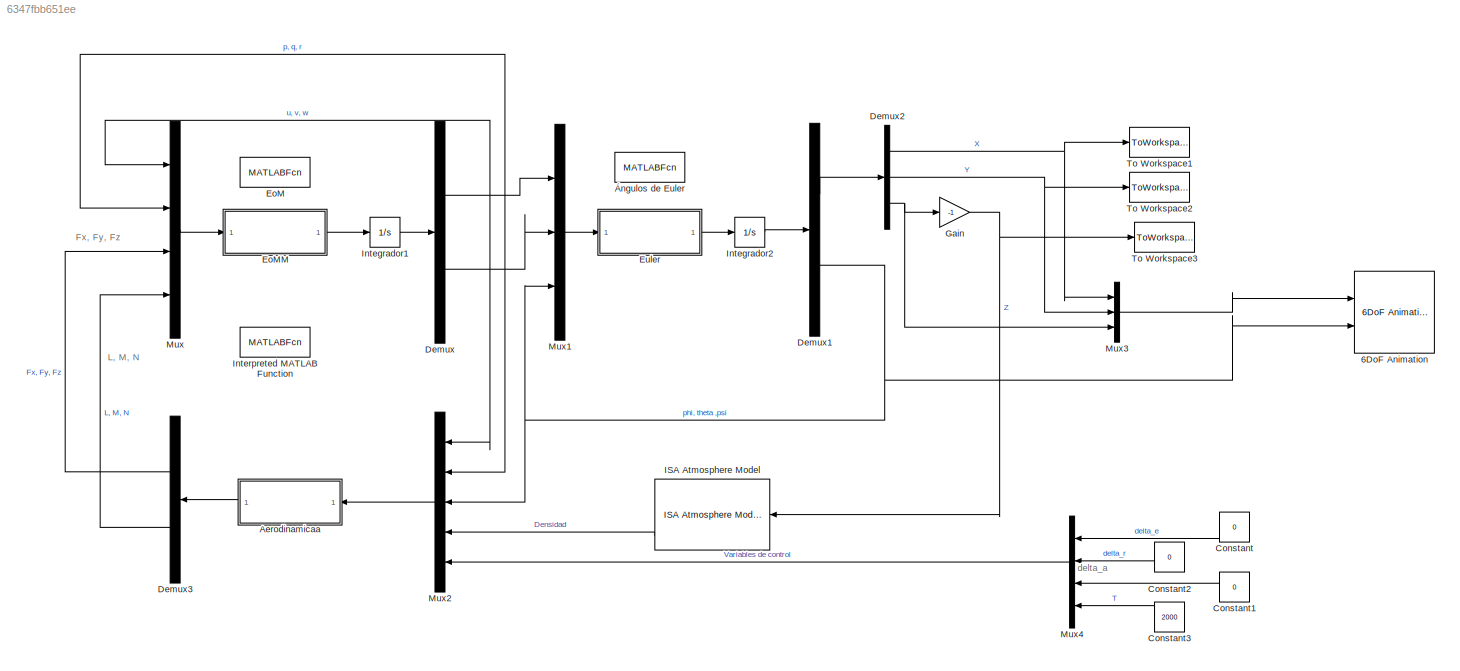
MODEL slx_6347fbb651ee
KIND model
CONFIG AbsTol = auto
CONFIG EnableMultiTasking = on
CONFIG FixedStep = auto
CONFIG MaxStep = auto
CONFIG MinStep = auto
CONFIG PreLoadFcn = codigos
CONFIG RelTol = 1e-3
CONFIG SampleTimeConstraint = Unconstrained
CONFIG SolverName = ode45
CONFIG StartTime = 0.0
CONFIG StopTime = 10
BLOCK [Reference] 6DoF Animation  REF=aerolibanim/6DoF Animation
  Ports = [2]
  SourceBlock = aerolibanim/6DoF Animation
  SourceProductBaseCode = AE
  SourceType = 6DoF_Animation
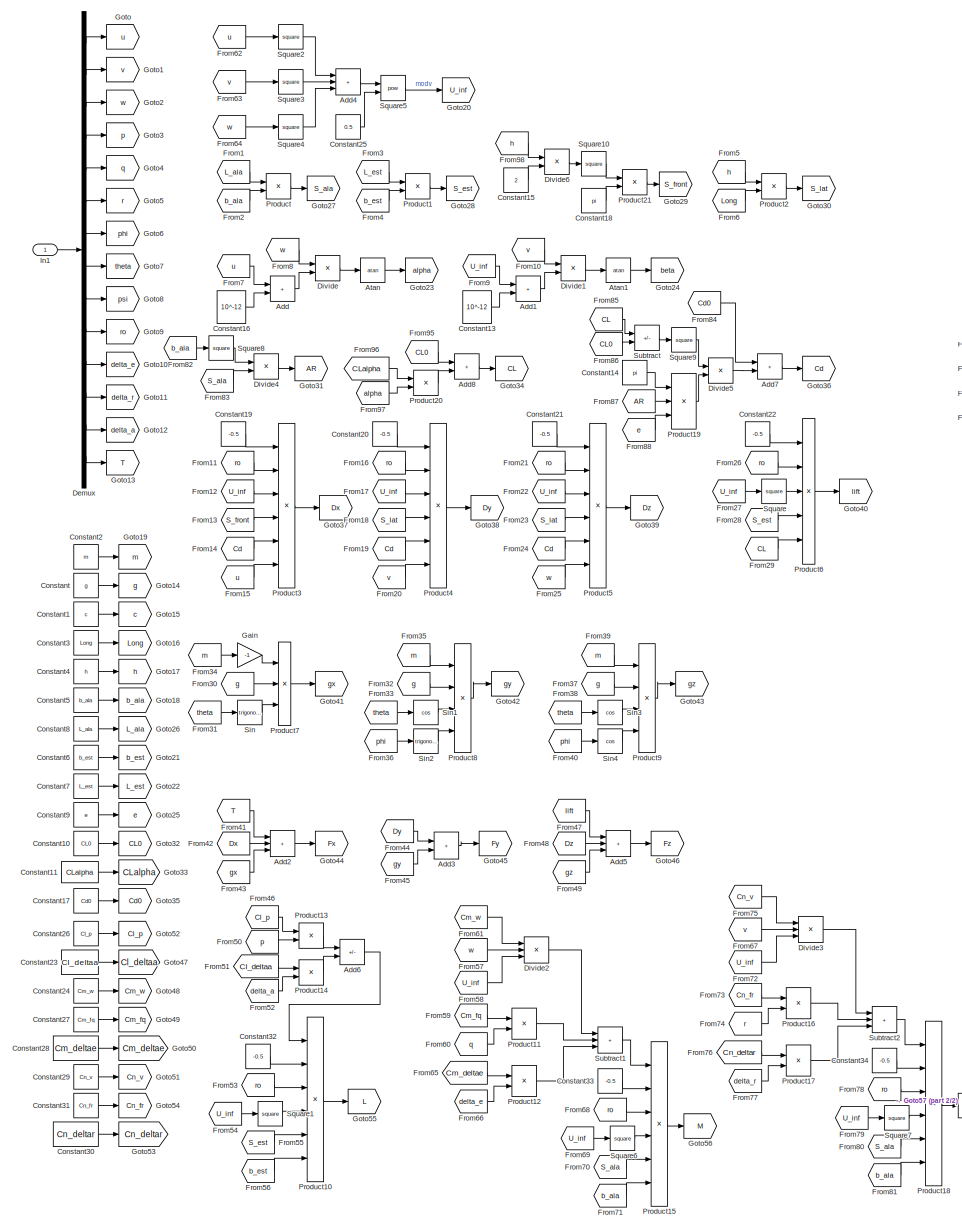
[diagram: Aerodinamicaa - part 1/2, most of the canvas]
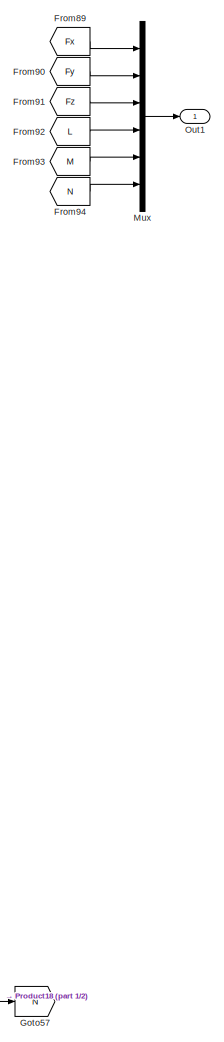
[diagram: Aerodinamicaa - part 2/2, middle right region]
BLOCK [SubSystem] Aerodinamicaa
  Ports = [1, 1]
  RequestExecContextInheritance = off
BLOCK [Sum] Aerodinamicaa/Add
  IconShape = rectangular
  Ports = [2, 1]
BLOCK [Sum] Aerodinamicaa/Add1
  IconShape = rectangular
  Ports = [2, 1]
BLOCK [Sum] Aerodinamicaa/Add2
  IconShape = rectangular
  Inputs = +++
  Ports = [3, 1]
BLOCK [Sum] Aerodinamicaa/Add3
  IconShape = rectangular
  Ports = [2, 1]
BLOCK [Sum] Aerodinamicaa/Add4
  IconShape = rectangular
  Inputs = +++
  Ports = [3, 1]
BLOCK [Sum] Aerodinamicaa/Add5
  IconShape = rectangular
  Inputs = +++
  Ports = [3, 1]
BLOCK [Sum] Aerodinamicaa/Add6
  IconShape = rectangular
  Inputs = +-
  Ports = [2, 1]
BLOCK [Sum] Aerodinamicaa/Add7
  IconShape = rectangular
  Ports = [2, 1]
BLOCK [Sum] Aerodinamicaa/Add8
  IconShape = rectangular
  Ports = [2, 1]
BLOCK [Trigonometry] Aerodinamicaa/Atan
  Operator = atan
  Ports = [1, 1]
BLOCK [Trigonometry] Aerodinamicaa/Atan1
  Operator = atan
  Ports = [1, 1]
BLOCK [Constant] Aerodinamicaa/Constant
  Value = g
BLOCK [Constant] Aerodinamicaa/Constant1
  Value = c
BLOCK [Constant] Aerodinamicaa/Constant10
  Value = CL0
BLOCK [Constant] Aerodinamicaa/Constant11
  Value = CLalpha
BLOCK [Constant] Aerodinamicaa/Constant13
  Value = 10^-12
BLOCK [Constant] Aerodinamicaa/Constant14
  Value = pi
BLOCK [Constant] Aerodinamicaa/Constant15
  Value = 2
BLOCK [Constant] Aerodinamicaa/Constant16
  Value = 10^-12
BLOCK [Constant] Aerodinamicaa/Constant17
  Value = Cd0
BLOCK [Constant] Aerodinamicaa/Constant18
  Value = pi
BLOCK [Constant] Aerodinamicaa/Constant19
  Value = -0.5
BLOCK [Constant] Aerodinamicaa/Constant2
  Value = m
BLOCK [Constant] Aerodinamicaa/Constant20
  Value = -0.5
BLOCK [Constant] Aerodinamicaa/Constant21
  Value = -0.5
BLOCK [Constant] Aerodinamicaa/Constant22
  Value = -0.5
BLOCK [Constant] Aerodinamicaa/Constant23
  Value = Cl_deltaa
BLOCK [Constant] Aerodinamicaa/Constant24
  Value = Cm_w
BLOCK [Constant] Aerodinamicaa/Constant25
  Value = 0.5
BLOCK [Constant] Aerodinamicaa/Constant26
  Value = Cl_p
BLOCK [Constant] Aerodinamicaa/Constant27
  Value = Cm_fq
BLOCK [Constant] Aerodinamicaa/Constant28
  Value = Cm_deltae
BLOCK [Constant] Aerodinamicaa/Constant29
  Value = Cn_v
BLOCK [Constant] Aerodinamicaa/Constant3
  Value = Long
BLOCK [Constant] Aerodinamicaa/Constant30
  Value = Cn_deltar
BLOCK [Constant] Aerodinamicaa/Constant31
  Value = Cn_fr
BLOCK [Constant] Aerodinamicaa/Constant32
  Value = -0.5
BLOCK [Constant] Aerodinamicaa/Constant33
  Value = -0.5
BLOCK [Constant] Aerodinamicaa/Constant34
  Value = -0.5
BLOCK [Constant] Aerodinamicaa/Constant4
  Value = h
BLOCK [Constant] Aerodinamicaa/Constant5
  Value = b_ala
BLOCK [Constant] Aerodinamicaa/Constant6
  Value = b_est
BLOCK [Constant] Aerodinamicaa/Constant7
  Value = L_est
BLOCK [Constant] Aerodinamicaa/Constant8
  Value = L_ala
BLOCK [Constant] Aerodinamicaa/Constant9
  Value = e
BLOCK [Demux] Aerodinamicaa/Demux
  Outputs = 14
  Ports = [1, 14]
BLOCK [Product] Aerodinamicaa/Divide
  Inputs = */
  Ports = [2, 1]
BLOCK [Product] Aerodinamicaa/Divide1
  Inputs = */
  Ports = [2, 1]
BLOCK [Product] Aerodinamicaa/Divide2
  Inputs = **/
  Ports = [3, 1]
BLOCK [Product] Aerodinamicaa/Divide3
  Inputs = **/
  Ports = [3, 1]
BLOCK [Product] Aerodinamicaa/Divide4
  Inputs = */
  Ports = [2, 1]
BLOCK [Product] Aerodinamicaa/Divide5
  Inputs = */
  Ports = [2, 1]
BLOCK [Product] Aerodinamicaa/Divide6
  Inputs = */
  Ports = [2, 1]
BLOCK [From] Aerodinamicaa/From1
  GotoTag = L_ala
BLOCK [From] Aerodinamicaa/From10
  GotoTag = v
BLOCK [From] Aerodinamicaa/From11
  GotoTag = ro
BLOCK [From] Aerodinamicaa/From12
  GotoTag = U_inf
BLOCK [From] Aerodinamicaa/From13
  GotoTag = S_front
BLOCK [From] Aerodinamicaa/From14
  GotoTag = Cd
BLOCK [From] Aerodinamicaa/From15
  GotoTag = u
BLOCK [From] Aerodinamicaa/From16
  GotoTag = ro
BLOCK [From] Aerodinamicaa/From17
  GotoTag = U_inf
BLOCK [From] Aerodinamicaa/From18
  GotoTag = S_lat
BLOCK [From] Aerodinamicaa/From19
  GotoTag = Cd
BLOCK [From] Aerodinamicaa/From2
  GotoTag = b_ala
BLOCK [From] Aerodinamicaa/From20
  GotoTag = v
BLOCK [From] Aerodinamicaa/From21
  GotoTag = ro
BLOCK [From] Aerodinamicaa/From22
  GotoTag = U_inf
BLOCK [From] Aerodinamicaa/From23
  GotoTag = S_lat
BLOCK [From] Aerodinamicaa/From24
  GotoTag = Cd
BLOCK [From] Aerodinamicaa/From25
  GotoTag = w
BLOCK [From] Aerodinamicaa/From26
  GotoTag = ro
BLOCK [From] Aerodinamicaa/From27
  GotoTag = U_inf
BLOCK [From] Aerodinamicaa/From28
  GotoTag = S_est
BLOCK [From] Aerodinamicaa/From29
  GotoTag = CL
BLOCK [From] Aerodinamicaa/From3
  GotoTag = L_est
BLOCK [From] Aerodinamicaa/From30
  GotoTag = g
BLOCK [From] Aerodinamicaa/From31
  GotoTag = theta
BLOCK [From] Aerodinamicaa/From32
  GotoTag = g
BLOCK [From] Aerodinamicaa/From33
  GotoTag = theta
BLOCK [From] Aerodinamicaa/From34
  GotoTag = m
BLOCK [From] Aerodinamicaa/From35
  GotoTag = m
BLOCK [From] Aerodinamicaa/From36
  GotoTag = phi
BLOCK [From] Aerodinamicaa/From37
  GotoTag = g
BLOCK [From] Aerodinamicaa/From38
  GotoTag = theta
BLOCK [From] Aerodinamicaa/From39
  GotoTag = m
BLOCK [From] Aerodinamicaa/From4
  GotoTag = b_est
BLOCK [From] Aerodinamicaa/From40
  GotoTag = phi
BLOCK [From] Aerodinamicaa/From41
  GotoTag = T
BLOCK [From] Aerodinamicaa/From42
  GotoTag = Dx
BLOCK [From] Aerodinamicaa/From43
  GotoTag = gx
BLOCK [From] Aerodinamicaa/From44
  GotoTag = Dy
BLOCK [From] Aerodinamicaa/From45
  GotoTag = gy
BLOCK [From] Aerodinamicaa/From46
  GotoTag = Cl_p
BLOCK [From] Aerodinamicaa/From47
  GotoTag = lift
BLOCK [From] Aerodinamicaa/From48
  GotoTag = Dz
BLOCK [From] Aerodinamicaa/From49
  GotoTag = gz
BLOCK [From] Aerodinamicaa/From5
  GotoTag = h
BLOCK [From] Aerodinamicaa/From50
  GotoTag = p
BLOCK [From] Aerodinamicaa/From51
  GotoTag = Cl_deltaa
BLOCK [From] Aerodinamicaa/From52
  GotoTag = delta_a
BLOCK [From] Aerodinamicaa/From53
  GotoTag = ro
BLOCK [From] Aerodinamicaa/From54
  GotoTag = U_inf
BLOCK [From] Aerodinamicaa/From55
  GotoTag = S_est
BLOCK [From] Aerodinamicaa/From56
  GotoTag = b_est
BLOCK [From] Aerodinamicaa/From57
  GotoTag = w
BLOCK [From] Aerodinamicaa/From58
  GotoTag = U_inf
BLOCK [From] Aerodinamicaa/From59
  GotoTag = Cm_fq
BLOCK [From] Aerodinamicaa/From6
  GotoTag = Long
BLOCK [From] Aerodinamicaa/From60
  GotoTag = q
BLOCK [From] Aerodinamicaa/From61
  GotoTag = Cm_w
BLOCK [From] Aerodinamicaa/From62
  GotoTag = u
BLOCK [From] Aerodinamicaa/From63
  GotoTag = v
BLOCK [From] Aerodinamicaa/From64
  GotoTag = w
BLOCK [From] Aerodinamicaa/From65
  GotoTag = Cm_deltae
BLOCK [From] Aerodinamicaa/From66
  GotoTag = delta_e
BLOCK [From] Aerodinamicaa/From67
  GotoTag = v
BLOCK [From] Aerodinamicaa/From68
  GotoTag = ro
BLOCK [From] Aerodinamicaa/From69
  GotoTag = U_inf
BLOCK [From] Aerodinamicaa/From7
  GotoTag = u
BLOCK [From] Aerodinamicaa/From70
  GotoTag = S_ala
BLOCK [From] Aerodinamicaa/From71
  GotoTag = b_ala
BLOCK [From] Aerodinamicaa/From72
  GotoTag = U_inf
BLOCK [From] Aerodinamicaa/From73
  GotoTag = Cn_fr
BLOCK [From] Aerodinamicaa/From74
  GotoTag = r
BLOCK [From] Aerodinamicaa/From75
  GotoTag = Cn_v
BLOCK [From] Aerodinamicaa/From76
  GotoTag = Cn_deltar
BLOCK [From] Aerodinamicaa/From77
  GotoTag = delta_r
BLOCK [From] Aerodinamicaa/From78
  GotoTag = ro
BLOCK [From] Aerodinamicaa/From79
  GotoTag = U_inf
BLOCK [From] Aerodinamicaa/From8
  GotoTag = w
BLOCK [From] Aerodinamicaa/From80
  GotoTag = S_ala
BLOCK [From] Aerodinamicaa/From81
  GotoTag = b_ala
BLOCK [From] Aerodinamicaa/From82
  GotoTag = b_ala
BLOCK [From] Aerodinamicaa/From83
  GotoTag = S_ala
BLOCK [From] Aerodinamicaa/From84
  GotoTag = Cd0
BLOCK [From] Aerodinamicaa/From85
  GotoTag = CL
BLOCK [From] Aerodinamicaa/From86
  GotoTag = CL0
BLOCK [From] Aerodinamicaa/From87
  GotoTag = AR
BLOCK [From] Aerodinamicaa/From88
  GotoTag = e
BLOCK [From] Aerodinamicaa/From89
  GotoTag = Fx
BLOCK [From] Aerodinamicaa/From9
  GotoTag = U_inf
BLOCK [From] Aerodinamicaa/From90
  GotoTag = Fy
BLOCK [From] Aerodinamicaa/From91
  GotoTag = Fz
BLOCK [From] Aerodinamicaa/From92
  GotoTag = L
BLOCK [From] Aerodinamicaa/From93
  GotoTag = M
BLOCK [From] Aerodinamicaa/From94
  GotoTag = N
BLOCK [From] Aerodinamicaa/From95
  GotoTag = CL0
BLOCK [From] Aerodinamicaa/From96
  GotoTag = CLalpha
BLOCK [From] Aerodinamicaa/From97
  GotoTag = alpha
BLOCK [From] Aerodinamicaa/From98
  GotoTag = h
BLOCK [Gain] Aerodinamicaa/Gain
  Gain = -1
BLOCK [Goto] Aerodinamicaa/Goto
  GotoTag = u
BLOCK [Goto] Aerodinamicaa/Goto1
  GotoTag = v
BLOCK [Goto] Aerodinamicaa/Goto10
  GotoTag = delta_e
BLOCK [Goto] Aerodinamicaa/Goto11
  GotoTag = delta_r
BLOCK [Goto] Aerodinamicaa/Goto12
  GotoTag = delta_a
BLOCK [Goto] Aerodinamicaa/Goto13
  GotoTag = T
BLOCK [Goto] Aerodinamicaa/Goto14
  GotoTag = g
BLOCK [Goto] Aerodinamicaa/Goto15
  GotoTag = c
BLOCK [Goto] Aerodinamicaa/Goto16
  GotoTag = Long
BLOCK [Goto] Aerodinamicaa/Goto17
  GotoTag = h
BLOCK [Goto] Aerodinamicaa/Goto18
  GotoTag = b_ala
BLOCK [Goto] Aerodinamicaa/Goto19
  GotoTag = m
BLOCK [Goto] Aerodinamicaa/Goto2
  GotoTag = w
BLOCK [Goto] Aerodinamicaa/Goto20
  GotoTag = U_inf
BLOCK [Goto] Aerodinamicaa/Goto21
  GotoTag = b_est
BLOCK [Goto] Aerodinamicaa/Goto22
  GotoTag = L_est
BLOCK [Goto] Aerodinamicaa/Goto23
  GotoTag = alpha
BLOCK [Goto] Aerodinamicaa/Goto24
  GotoTag = beta
BLOCK [Goto] Aerodinamicaa/Goto25
  GotoTag = e
BLOCK [Goto] Aerodinamicaa/Goto26
  GotoTag = L_ala
BLOCK [Goto] Aerodinamicaa/Goto27
  GotoTag = S_ala
BLOCK [Goto] Aerodinamicaa/Goto28
  GotoTag = S_est
BLOCK [Goto] Aerodinamicaa/Goto29
  GotoTag = S_front
BLOCK [Goto] Aerodinamicaa/Goto3
  GotoTag = p
BLOCK [Goto] Aerodinamicaa/Goto30
  GotoTag = S_lat
BLOCK [Goto] Aerodinamicaa/Goto31
  GotoTag = AR
BLOCK [Goto] Aerodinamicaa/Goto32
  GotoTag = CL0
BLOCK [Goto] Aerodinamicaa/Goto33
  GotoTag = CLalpha
BLOCK [Goto] Aerodinamicaa/Goto34
  GotoTag = CL
BLOCK [Goto] Aerodinamicaa/Goto35
  GotoTag = Cd0
BLOCK [Goto] Aerodinamicaa/Goto36
  GotoTag = Cd
BLOCK [Goto] Aerodinamicaa/Goto37
  GotoTag = Dx
BLOCK [Goto] Aerodinamicaa/Goto38
  GotoTag = Dy
BLOCK [Goto] Aerodinamicaa/Goto39
  GotoTag = Dz
BLOCK [Goto] Aerodinamicaa/Goto4
  GotoTag = q
BLOCK [Goto] Aerodinamicaa/Goto40
  GotoTag = lift
BLOCK [Goto] Aerodinamicaa/Goto41
  GotoTag = gx
BLOCK [Goto] Aerodinamicaa/Goto42
  GotoTag = gy
BLOCK [Goto] Aerodinamicaa/Goto43
  GotoTag = gz
BLOCK [Goto] Aerodinamicaa/Goto44
  GotoTag = Fx
BLOCK [Goto] Aerodinamicaa/Goto45
  GotoTag = Fy
BLOCK [Goto] Aerodinamicaa/Goto46
  GotoTag = Fz
BLOCK [Goto] Aerodinamicaa/Goto47
  GotoTag = Cl_deltaa
BLOCK [Goto] Aerodinamicaa/Goto48
  GotoTag = Cm_w
BLOCK [Goto] Aerodinamicaa/Goto49
  GotoTag = Cm_fq
BLOCK [Goto] Aerodinamicaa/Goto5
  GotoTag = r
BLOCK [Goto] Aerodinamicaa/Goto50
  GotoTag = Cm_deltae
BLOCK [Goto] Aerodinamicaa/Goto51
  GotoTag = Cn_v
BLOCK [Goto] Aerodinamicaa/Goto52
  GotoTag = Cl_p
BLOCK [Goto] Aerodinamicaa/Goto53
  GotoTag = Cn_deltar
BLOCK [Goto] Aerodinamicaa/Goto54
  GotoTag = Cn_fr
BLOCK [Goto] Aerodinamicaa/Goto55
  GotoTag = L
BLOCK [Goto] Aerodinamicaa/Goto56
  GotoTag = M
BLOCK [Goto] Aerodinamicaa/Goto57
  GotoTag = N
BLOCK [Goto] Aerodinamicaa/Goto6
  GotoTag = phi
BLOCK [Goto] Aerodinamicaa/Goto7
  GotoTag = theta
BLOCK [Goto] Aerodinamicaa/Goto8
  GotoTag = psi
BLOCK [Goto] Aerodinamicaa/Goto9
  GotoTag = ro
BLOCK [Inport] Aerodinamicaa/In1
BLOCK [Mux] Aerodinamicaa/Mux
  DisplayOption = bar
  Inputs = 6
  Ports = [6, 1]
BLOCK [Outport] Aerodinamicaa/Out1
BLOCK [Product] Aerodinamicaa/Product
  Ports = [2, 1]
BLOCK [Product] Aerodinamicaa/Product1
  Ports = [2, 1]
BLOCK [Product] Aerodinamicaa/Product10
  Inputs = 6
  Ports = [6, 1]
BLOCK [Product] Aerodinamicaa/Product11
  Ports = [2, 1]
BLOCK [Product] Aerodinamicaa/Product12
  Ports = [2, 1]
BLOCK [Product] Aerodinamicaa/Product13
  Ports = [2, 1]
BLOCK [Product] Aerodinamicaa/Product14
  Ports = [2, 1]
BLOCK [Product] Aerodinamicaa/Product15
  Inputs = 6
  Ports = [6, 1]
BLOCK [Product] Aerodinamicaa/Product16
  Ports = [2, 1]
BLOCK [Product] Aerodinamicaa/Product17
  Ports = [2, 1]
BLOCK [Product] Aerodinamicaa/Product18
  Inputs = 6
  Ports = [6, 1]
BLOCK [Product] Aerodinamicaa/Product19
  Inputs = 3
  Ports = [3, 1]
BLOCK [Product] Aerodinamicaa/Product2
  Ports = [2, 1]
BLOCK [Product] Aerodinamicaa/Product20
  Ports = [2, 1]
BLOCK [Product] Aerodinamicaa/Product21
  Ports = [2, 1]
BLOCK [Product] Aerodinamicaa/Product3
  Inputs = 6
  Ports = [6, 1]
BLOCK [Product] Aerodinamicaa/Product4
  Inputs = 6
  Ports = [6, 1]
BLOCK [Product] Aerodinamicaa/Product5
  Inputs = 6
  Ports = [6, 1]
BLOCK [Product] Aerodinamicaa/Product6
  Inputs = 5
  Ports = [5, 1]
BLOCK [Product] Aerodinamicaa/Product7
  Inputs = 3
  Ports = [3, 1]
BLOCK [Product] Aerodinamicaa/Product8
  Inputs = 4
  Ports = [4, 1]
BLOCK [Product] Aerodinamicaa/Product9
  Inputs = 4
  Ports = [4, 1]
BLOCK [Trigonometry] Aerodinamicaa/Sin
  Ports = [1, 1]
BLOCK [Trigonometry] Aerodinamicaa/Sin1
  Operator = cos
  Ports = [1, 1]
BLOCK [Trigonometry] Aerodinamicaa/Sin2
  Ports = [1, 1]
BLOCK [Trigonometry] Aerodinamicaa/Sin3
  Operator = cos
  Ports = [1, 1]
BLOCK [Trigonometry] Aerodinamicaa/Sin4
  Operator = cos
  Ports = [1, 1]
BLOCK [Math] Aerodinamicaa/Square
  Operator = square
  Ports = [1, 1]
BLOCK [Math] Aerodinamicaa/Square1
  Operator = square
  Ports = [1, 1]
BLOCK [Math] Aerodinamicaa/Square10
  Operator = square
  Ports = [1, 1]
BLOCK [Math] Aerodinamicaa/Square2
  Operator = square
  Ports = [1, 1]
BLOCK [Math] Aerodinamicaa/Square3
  Operator = square
  Ports = [1, 1]
BLOCK [Math] Aerodinamicaa/Square4
  Operator = square
  Ports = [1, 1]
BLOCK [Math] Aerodinamicaa/Square5
  Operator = pow
  Ports = [2, 1]
BLOCK [Math] Aerodinamicaa/Square6
  Operator = square
  Ports = [1, 1]
BLOCK [Math] Aerodinamicaa/Square7
  Operator = square
  Ports = [1, 1]
BLOCK [Math] Aerodinamicaa/Square8
  Operator = square
  Ports = [1, 1]
BLOCK [Math] Aerodinamicaa/Square9
  Operator = square
  Ports = [1, 1]
BLOCK [Sum] Aerodinamicaa/Subtract
  IconShape = rectangular
  Inputs = +-
  Ports = [2, 1]
BLOCK [Sum] Aerodinamicaa/Subtract1
  IconShape = rectangular
  Inputs = +++
  Ports = [3, 1]
BLOCK [Sum] Aerodinamicaa/Subtract2
  IconShape = rectangular
  Inputs = +++
  Ports = [3, 1]
BLOCK [Constant] Constant
  NameLocation = top
  Value = 0
BLOCK [Constant] Constant1
  NameLocation = top
  Value = 0
BLOCK [Constant] Constant2
  NameLocation = top
  Value = 0
BLOCK [Constant] Constant3
  NameLocation = top
  Value = 2000
BLOCK [Demux] Demux
  Outputs = 2
  Ports = [1, 2]
BLOCK [Demux] Demux1
  Outputs = 2
  Ports = [1, 2]
BLOCK [Demux] Demux2
  Outputs = 3
  Ports = [1, 3]
BLOCK [Demux] Demux3
  NameLocation = top
  Outputs = 2
  Ports = [1, 2]
BLOCK [MATLABFcn] EoM
  Commented = on
  MATLABFcn = eom
  OutputDimensions = 6
  Ports = [1, 1]
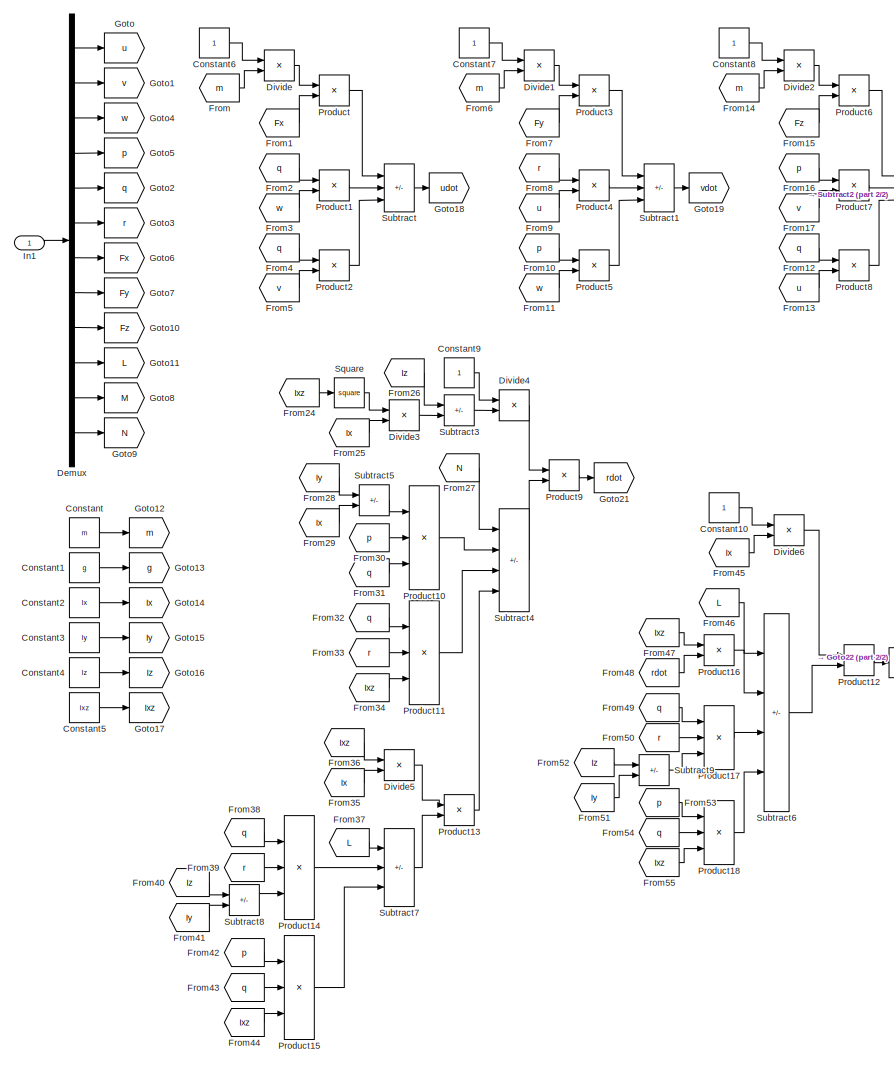
[diagram: EoMM - part 1/2, left side, full height]
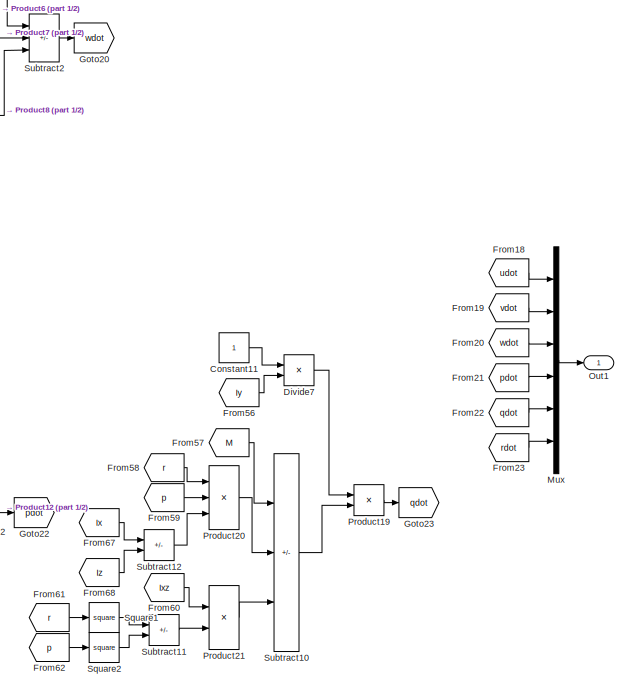
[diagram: EoMM - part 2/2, middle right region]
BLOCK [SubSystem] EoMM
  Ports = [1, 1]
  RequestExecContextInheritance = off
BLOCK [Constant] EoMM/Constant
  Value = m
BLOCK [Constant] EoMM/Constant1
  Value = g
BLOCK [Constant] EoMM/Constant10
BLOCK [Constant] EoMM/Constant11
BLOCK [Constant] EoMM/Constant2
  Value = Ix
BLOCK [Constant] EoMM/Constant3
  Value = Iy
BLOCK [Constant] EoMM/Constant4
  Value = Iz
BLOCK [Constant] EoMM/Constant5
  Value = Ixz
BLOCK [Constant] EoMM/Constant6
BLOCK [Constant] EoMM/Constant7
BLOCK [Constant] EoMM/Constant8
BLOCK [Constant] EoMM/Constant9
BLOCK [Demux] EoMM/Demux
  Outputs = 12
  Ports = [1, 12]
BLOCK [Product] EoMM/Divide
  Inputs = */
  Ports = [2, 1]
BLOCK [Product] EoMM/Divide1
  Inputs = */
  Ports = [2, 1]
BLOCK [Product] EoMM/Divide2
  Inputs = */
  Ports = [2, 1]
BLOCK [Product] EoMM/Divide3
  Inputs = */
  Ports = [2, 1]
BLOCK [Product] EoMM/Divide4
  Inputs = */
  Ports = [2, 1]
BLOCK [Product] EoMM/Divide5
  Inputs = */
  Ports = [2, 1]
BLOCK [Product] EoMM/Divide6
  Inputs = */
  Ports = [2, 1]
BLOCK [Product] EoMM/Divide7
  Inputs = */
  Ports = [2, 1]
BLOCK [From] EoMM/From
  GotoTag = m
BLOCK [From] EoMM/From1
  GotoTag = Fx
BLOCK [From] EoMM/From10
  GotoTag = p
BLOCK [From] EoMM/From11
  GotoTag = w
BLOCK [From] EoMM/From12
  GotoTag = q
BLOCK [From] EoMM/From13
  GotoTag = u
BLOCK [From] EoMM/From14
  GotoTag = m
BLOCK [From] EoMM/From15
  GotoTag = Fz
BLOCK [From] EoMM/From16
  GotoTag = p
BLOCK [From] EoMM/From17
  GotoTag = v
BLOCK [From] EoMM/From18
  GotoTag = udot
BLOCK [From] EoMM/From19
  GotoTag = vdot
BLOCK [From] EoMM/From2
  GotoTag = q
BLOCK [From] EoMM/From20
  GotoTag = wdot
BLOCK [From] EoMM/From21
  GotoTag = pdot
BLOCK [From] EoMM/From22
  GotoTag = qdot
BLOCK [From] EoMM/From23
  GotoTag = rdot
BLOCK [From] EoMM/From24
  GotoTag = Ixz
BLOCK [From] EoMM/From25
  GotoTag = Ix
BLOCK [From] EoMM/From26
  GotoTag = Iz
BLOCK [From] EoMM/From27
  GotoTag = N
BLOCK [From] EoMM/From28
  GotoTag = Iy
BLOCK [From] EoMM/From29
  GotoTag = Ix
BLOCK [From] EoMM/From3
  GotoTag = w
BLOCK [From] EoMM/From30
  GotoTag = p
BLOCK [From] EoMM/From31
  GotoTag = q
BLOCK [From] EoMM/From32
  GotoTag = q
BLOCK [From] EoMM/From33
  GotoTag = r
BLOCK [From] EoMM/From34
  GotoTag = Ixz
BLOCK [From] EoMM/From35
  GotoTag = Ix
BLOCK [From] EoMM/From36
  GotoTag = Ixz
BLOCK [From] EoMM/From37
  GotoTag = L
BLOCK [From] EoMM/From38
  GotoTag = q
BLOCK [From] EoMM/From39
  GotoTag = r
BLOCK [From] EoMM/From4
  GotoTag = q
BLOCK [From] EoMM/From40
  GotoTag = Iz
BLOCK [From] EoMM/From41
  GotoTag = Iy
BLOCK [From] EoMM/From42
  GotoTag = p
BLOCK [From] EoMM/From43
  GotoTag = q
BLOCK [From] EoMM/From44
  GotoTag = Ixz
BLOCK [From] EoMM/From45
  GotoTag = Ix
BLOCK [From] EoMM/From46
  GotoTag = L
BLOCK [From] EoMM/From47
  GotoTag = Ixz
BLOCK [From] EoMM/From48
  GotoTag = rdot
BLOCK [From] EoMM/From49
  GotoTag = q
BLOCK [From] EoMM/From5
  GotoTag = v
BLOCK [From] EoMM/From50
  GotoTag = r
BLOCK [From] EoMM/From51
  GotoTag = Iy
BLOCK [From] EoMM/From52
  GotoTag = Iz
BLOCK [From] EoMM/From53
  GotoTag = p
BLOCK [From] EoMM/From54
  GotoTag = q
BLOCK [From] EoMM/From55
  GotoTag = Ixz
BLOCK [From] EoMM/From56
  GotoTag = Iy
BLOCK [From] EoMM/From57
  GotoTag = M
BLOCK [From] EoMM/From58
  GotoTag = r
BLOCK [From] EoMM/From59
  GotoTag = p
BLOCK [From] EoMM/From6
  GotoTag = m
BLOCK [From] EoMM/From60
  GotoTag = Ixz
BLOCK [From] EoMM/From61
  GotoTag = r
BLOCK [From] EoMM/From62
  GotoTag = p
BLOCK [From] EoMM/From67
  GotoTag = Ix
BLOCK [From] EoMM/From68
  GotoTag = Iz
BLOCK [From] EoMM/From7
  GotoTag = Fy
BLOCK [From] EoMM/From8
  GotoTag = r
BLOCK [From] EoMM/From9
  GotoTag = u
BLOCK [Goto] EoMM/Goto
  GotoTag = u
BLOCK [Goto] EoMM/Goto1
  GotoTag = v
BLOCK [Goto] EoMM/Goto10
  GotoTag = Fz
BLOCK [Goto] EoMM/Goto11
  GotoTag = L
BLOCK [Goto] EoMM/Goto12
  GotoTag = m
BLOCK [Goto] EoMM/Goto13
  GotoTag = g
BLOCK [Goto] EoMM/Goto14
  GotoTag = Ix
BLOCK [Goto] EoMM/Goto15
  GotoTag = Iy
BLOCK [Goto] EoMM/Goto16
  GotoTag = Iz
BLOCK [Goto] EoMM/Goto17
  GotoTag = Ixz
BLOCK [Goto] EoMM/Goto18
  GotoTag = udot
BLOCK [Goto] EoMM/Goto19
  GotoTag = vdot
BLOCK [Goto] EoMM/Goto2
  GotoTag = q
BLOCK [Goto] EoMM/Goto20
  GotoTag = wdot
BLOCK [Goto] EoMM/Goto21
  GotoTag = rdot
BLOCK [Goto] EoMM/Goto22
  GotoTag = pdot
BLOCK [Goto] EoMM/Goto23
  GotoTag = qdot
BLOCK [Goto] EoMM/Goto3
  GotoTag = r
BLOCK [Goto] EoMM/Goto4
  GotoTag = w
BLOCK [Goto] EoMM/Goto5
  GotoTag = p
BLOCK [Goto] EoMM/Goto6
  GotoTag = Fx
BLOCK [Goto] EoMM/Goto7
  GotoTag = Fy
BLOCK [Goto] EoMM/Goto8
  GotoTag = M
BLOCK [Goto] EoMM/Goto9
  GotoTag = N
BLOCK [Inport] EoMM/In1
BLOCK [Mux] EoMM/Mux
  DisplayOption = bar
  Inputs = 6
  Ports = [6, 1]
BLOCK [Outport] EoMM/Out1
BLOCK [Product] EoMM/Product
  Ports = [2, 1]
BLOCK [Product] EoMM/Product1
  Ports = [2, 1]
BLOCK [Product] EoMM/Product10
  Inputs = 3
  Ports = [3, 1]
BLOCK [Product] EoMM/Product11
  Inputs = 3
  Ports = [3, 1]
BLOCK [Product] EoMM/Product12
  Ports = [2, 1]
BLOCK [Product] EoMM/Product13
  Ports = [2, 1]
BLOCK [Product] EoMM/Product14
  Inputs = 3
  Ports = [3, 1]
BLOCK [Product] EoMM/Product15
  Inputs = 3
  Ports = [3, 1]
BLOCK [Product] EoMM/Product16
  Ports = [2, 1]
BLOCK [Product] EoMM/Product17
  Inputs = 3
  Ports = [3, 1]
BLOCK [Product] EoMM/Product18
  Inputs = 3
  Ports = [3, 1]
BLOCK [Product] EoMM/Product19
  Ports = [2, 1]
BLOCK [Product] EoMM/Product2
  Ports = [2, 1]
BLOCK [Product] EoMM/Product20
  Inputs = 3
  Ports = [3, 1]
BLOCK [Product] EoMM/Product21
  Ports = [2, 1]
BLOCK [Product] EoMM/Product3
  Ports = [2, 1]
BLOCK [Product] EoMM/Product4
  Ports = [2, 1]
BLOCK [Product] EoMM/Product5
  Ports = [2, 1]
BLOCK [Product] EoMM/Product6
  Ports = [2, 1]
BLOCK [Product] EoMM/Product7
  Ports = [2, 1]
BLOCK [Product] EoMM/Product8
  Ports = [2, 1]
BLOCK [Product] EoMM/Product9
  Ports = [2, 1]
BLOCK [Math] EoMM/Square
  Operator = square
  Ports = [1, 1]
BLOCK [Math] EoMM/Square1
  Operator = square
  Ports = [1, 1]
BLOCK [Math] EoMM/Square2
  Operator = square
  Ports = [1, 1]
BLOCK [Sum] EoMM/Subtract
  IconShape = rectangular
  Inputs = +-+
  Ports = [3, 1]
BLOCK [Sum] EoMM/Subtract1
  IconShape = rectangular
  Inputs = +-+
  Ports = [3, 1]
BLOCK [Sum] EoMM/Subtract10
  IconShape = rectangular
  Inputs = +--
  Ports = [3, 1]
BLOCK [Sum] EoMM/Subtract11
  IconShape = rectangular
  Inputs = +-
  Ports = [2, 1]
BLOCK [Sum] EoMM/Subtract12
  IconShape = rectangular
  Inputs = +-
  Ports = [2, 1]
BLOCK [Sum] EoMM/Subtract2
  IconShape = rectangular
  Inputs = +-+
  Ports = [3, 1]
BLOCK [Sum] EoMM/Subtract3
  IconShape = rectangular
  Inputs = +-
  Ports = [2, 1]
BLOCK [Sum] EoMM/Subtract4
  IconShape = rectangular
  Inputs = +-+-
  Ports = [4, 1]
BLOCK [Sum] EoMM/Subtract5
  IconShape = rectangular
  Inputs = +-
  Ports = [2, 1]
BLOCK [Sum] EoMM/Subtract6
  IconShape = rectangular
  Inputs = +---
  Ports = [4, 1]
BLOCK [Sum] EoMM/Subtract7
  IconShape = rectangular
  Inputs = +--
  Ports = [3, 1]
BLOCK [Sum] EoMM/Subtract8
  IconShape = rectangular
  Inputs = +-
  Ports = [2, 1]
BLOCK [Sum] EoMM/Subtract9
  IconShape = rectangular
  Inputs = +-
  Ports = [2, 1]
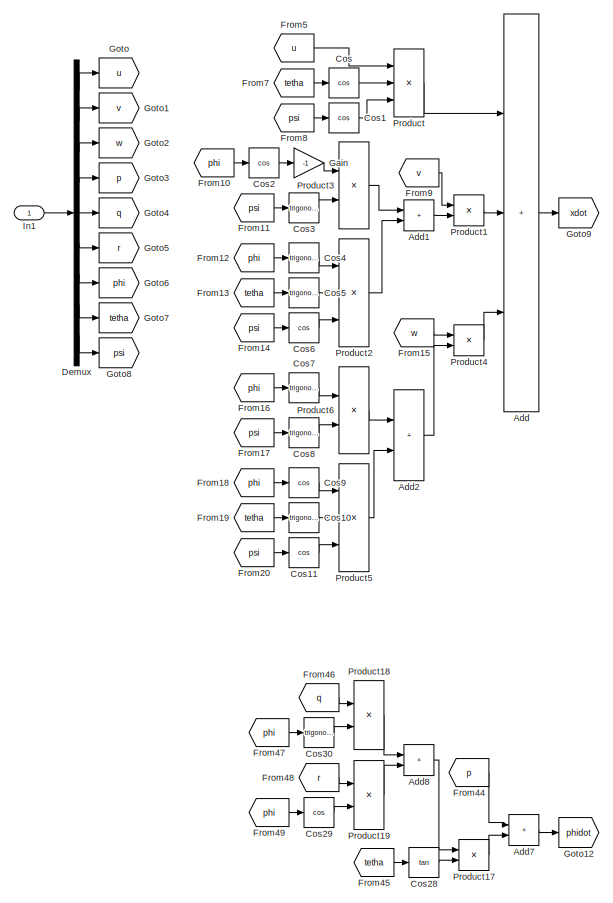
[diagram: Euler - part 1/2, left side, full height]
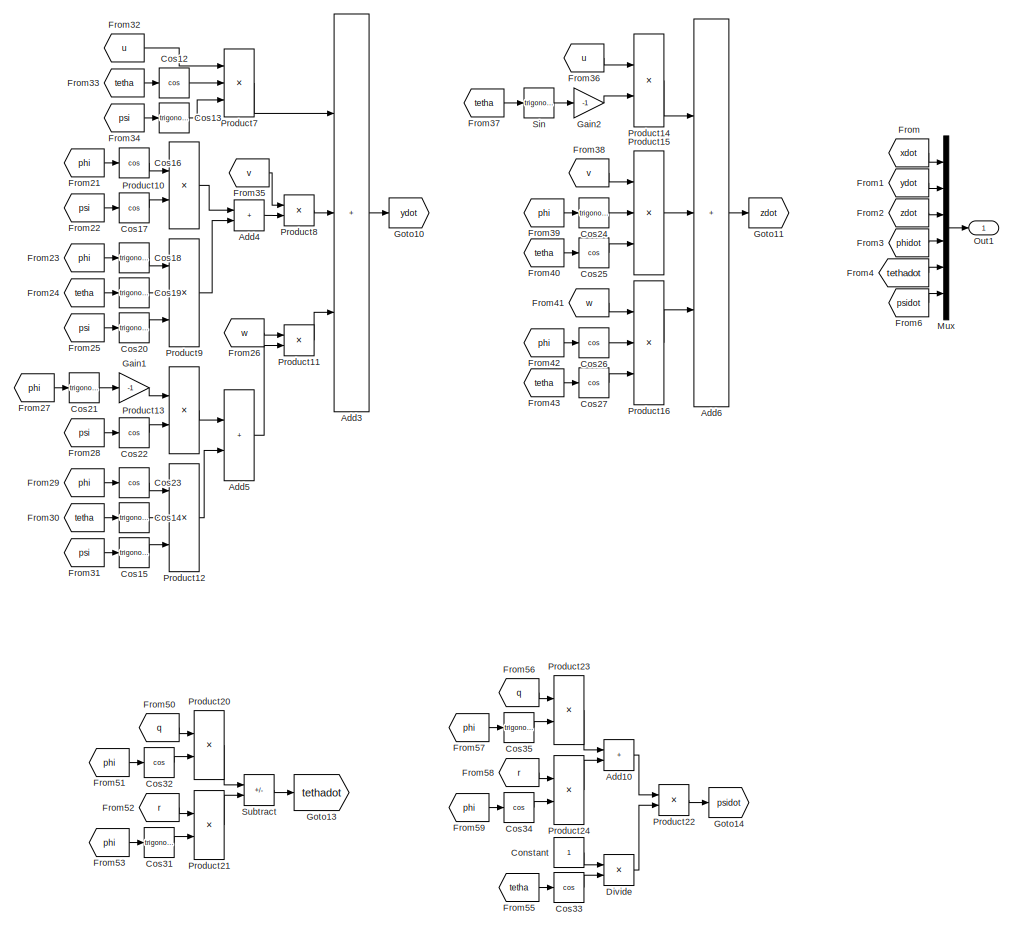
[diagram: Euler - part 2/2, right side, full height]
BLOCK [SubSystem] Euler
  Ports = [1, 1]
  RequestExecContextInheritance = off
BLOCK [Sum] Euler/Add
  IconShape = rectangular
  Inputs = +++
  Ports = [3, 1]
BLOCK [Sum] Euler/Add1
  IconShape = rectangular
  Ports = [2, 1]
BLOCK [Sum] Euler/Add10
  IconShape = rectangular
  Ports = [2, 1]
BLOCK [Sum] Euler/Add2
  IconShape = rectangular
  Ports = [2, 1]
BLOCK [Sum] Euler/Add3
  IconShape = rectangular
  Inputs = +++
  Ports = [3, 1]
BLOCK [Sum] Euler/Add4
  IconShape = rectangular
  Ports = [2, 1]
BLOCK [Sum] Euler/Add5
  IconShape = rectangular
  Ports = [2, 1]
BLOCK [Sum] Euler/Add6
  IconShape = rectangular
  Inputs = +++
  Ports = [3, 1]
BLOCK [Sum] Euler/Add7
  IconShape = rectangular
  Ports = [2, 1]
BLOCK [Sum] Euler/Add8
  IconShape = rectangular
  Ports = [2, 1]
BLOCK [Constant] Euler/Constant
BLOCK [Trigonometry] Euler/Cos
  Operator = cos
  Ports = [1, 1]
BLOCK [Trigonometry] Euler/Cos1
  Operator = cos
  Ports = [1, 1]
BLOCK [Trigonometry] Euler/Cos10
  Ports = [1, 1]
BLOCK [Trigonometry] Euler/Cos11
  Operator = cos
  Ports = [1, 1]
BLOCK [Trigonometry] Euler/Cos12
  Operator = cos
  Ports = [1, 1]
BLOCK [Trigonometry] Euler/Cos13
  Ports = [1, 1]
BLOCK [Trigonometry] Euler/Cos14
  Ports = [1, 1]
BLOCK [Trigonometry] Euler/Cos15
  Ports = [1, 1]
BLOCK [Trigonometry] Euler/Cos16
  Operator = cos
  Ports = [1, 1]
BLOCK [Trigonometry] Euler/Cos17
  Operator = cos
  Ports = [1, 1]
BLOCK [Trigonometry] Euler/Cos18
  Ports = [1, 1]
BLOCK [Trigonometry] Euler/Cos19
  Ports = [1, 1]
BLOCK [Trigonometry] Euler/Cos2
  Operator = cos
  Ports = [1, 1]
BLOCK [Trigonometry] Euler/Cos20
  Ports = [1, 1]
BLOCK [Trigonometry] Euler/Cos21
  Ports = [1, 1]
BLOCK [Trigonometry] Euler/Cos22
  Operator = cos
  Ports = [1, 1]
BLOCK [Trigonometry] Euler/Cos23
  Operator = cos
  Ports = [1, 1]
BLOCK [Trigonometry] Euler/Cos24
  Ports = [1, 1]
BLOCK [Trigonometry] Euler/Cos25
  Operator = cos
  Ports = [1, 1]
BLOCK [Trigonometry] Euler/Cos26
  Operator = cos
  Ports = [1, 1]
BLOCK [Trigonometry] Euler/Cos27
  Operator = cos
  Ports = [1, 1]
BLOCK [Trigonometry] Euler/Cos28
  Operator = tan
  Ports = [1, 1]
BLOCK [Trigonometry] Euler/Cos29
  Operator = cos
  Ports = [1, 1]
BLOCK [Trigonometry] Euler/Cos3
  Ports = [1, 1]
BLOCK [Trigonometry] Euler/Cos30
  Ports = [1, 1]
BLOCK [Trigonometry] Euler/Cos31
  Ports = [1, 1]
BLOCK [Trigonometry] Euler/Cos32
  Operator = cos
  Ports = [1, 1]
BLOCK [Trigonometry] Euler/Cos33
  Operator = cos
  Ports = [1, 1]
BLOCK [Trigonometry] Euler/Cos34
  Operator = cos
  Ports = [1, 1]
BLOCK [Trigonometry] Euler/Cos35
  Ports = [1, 1]
BLOCK [Trigonometry] Euler/Cos4
  Ports = [1, 1]
BLOCK [Trigonometry] Euler/Cos5
  Ports = [1, 1]
BLOCK [Trigonometry] Euler/Cos6
  Operator = cos
  Ports = [1, 1]
BLOCK [Trigonometry] Euler/Cos7
  Ports = [1, 1]
BLOCK [Trigonometry] Euler/Cos8
  Ports = [1, 1]
BLOCK [Trigonometry] Euler/Cos9
  Operator = cos
  Ports = [1, 1]
BLOCK [Demux] Euler/Demux
  Outputs = 9
  Ports = [1, 9]
BLOCK [Product] Euler/Divide
  Inputs = */
  Ports = [2, 1]
BLOCK [From] Euler/From
  GotoTag = xdot
BLOCK [From] Euler/From1
  GotoTag = ydot
BLOCK [From] Euler/From10
  GotoTag = phi
BLOCK [From] Euler/From11
  GotoTag = psi
BLOCK [From] Euler/From12
  GotoTag = phi
BLOCK [From] Euler/From13
  GotoTag = tetha
BLOCK [From] Euler/From14
  GotoTag = psi
BLOCK [From] Euler/From15
  GotoTag = w
BLOCK [From] Euler/From16
  GotoTag = phi
BLOCK [From] Euler/From17
  GotoTag = psi
BLOCK [From] Euler/From18
  GotoTag = phi
BLOCK [From] Euler/From19
  GotoTag = tetha
BLOCK [From] Euler/From2
  GotoTag = zdot
BLOCK [From] Euler/From20
  GotoTag = psi
BLOCK [From] Euler/From21
  GotoTag = phi
BLOCK [From] Euler/From22
  GotoTag = psi
BLOCK [From] Euler/From23
  GotoTag = phi
BLOCK [From] Euler/From24
  GotoTag = tetha
BLOCK [From] Euler/From25
  GotoTag = psi
BLOCK [From] Euler/From26
  GotoTag = w
BLOCK [From] Euler/From27
  GotoTag = phi
BLOCK [From] Euler/From28
  GotoTag = psi
BLOCK [From] Euler/From29
  GotoTag = phi
BLOCK [From] Euler/From3
  GotoTag = phidot
BLOCK [From] Euler/From30
  GotoTag = tetha
BLOCK [From] Euler/From31
  GotoTag = psi
BLOCK [From] Euler/From32
  GotoTag = u
BLOCK [From] Euler/From33
  GotoTag = tetha
BLOCK [From] Euler/From34
  GotoTag = psi
BLOCK [From] Euler/From35
  GotoTag = v
BLOCK [From] Euler/From36
  GotoTag = u
BLOCK [From] Euler/From37
  GotoTag = tetha
BLOCK [From] Euler/From38
  GotoTag = v
BLOCK [From] Euler/From39
  GotoTag = phi
BLOCK [From] Euler/From4
  GotoTag = tethadot
BLOCK [From] Euler/From40
  GotoTag = tetha
BLOCK [From] Euler/From41
  GotoTag = w
BLOCK [From] Euler/From42
  GotoTag = phi
BLOCK [From] Euler/From43
  GotoTag = tetha
BLOCK [From] Euler/From44
  GotoTag = p
BLOCK [From] Euler/From45
  GotoTag = tetha
BLOCK [From] Euler/From46
  GotoTag = q
BLOCK [From] Euler/From47
  GotoTag = phi
BLOCK [From] Euler/From48
  GotoTag = r
BLOCK [From] Euler/From49
  GotoTag = phi
BLOCK [From] Euler/From5
  GotoTag = u
BLOCK [From] Euler/From50
  GotoTag = q
BLOCK [From] Euler/From51
  GotoTag = phi
BLOCK [From] Euler/From52
  GotoTag = r
BLOCK [From] Euler/From53
  GotoTag = phi
BLOCK [From] Euler/From55
  GotoTag = tetha
BLOCK [From] Euler/From56
  GotoTag = q
BLOCK [From] Euler/From57
  GotoTag = phi
BLOCK [From] Euler/From58
  GotoTag = r
BLOCK [From] Euler/From59
  GotoTag = phi
BLOCK [From] Euler/From6
  GotoTag = psidot
BLOCK [From] Euler/From7
  GotoTag = tetha
BLOCK [From] Euler/From8
  GotoTag = psi
BLOCK [From] Euler/From9
  GotoTag = v
BLOCK [Gain] Euler/Gain
  Gain = -1
BLOCK [Gain] Euler/Gain1
  Gain = -1
BLOCK [Gain] Euler/Gain2
  Gain = -1
BLOCK [Goto] Euler/Goto
  GotoTag = u
BLOCK [Goto] Euler/Goto1
  GotoTag = v
BLOCK [Goto] Euler/Goto10
  GotoTag = ydot
BLOCK [Goto] Euler/Goto11
  GotoTag = zdot
BLOCK [Goto] Euler/Goto12
  GotoTag = phidot
BLOCK [Goto] Euler/Goto13
  GotoTag = tethadot
BLOCK [Goto] Euler/Goto14
  GotoTag = psidot
BLOCK [Goto] Euler/Goto2
  GotoTag = w
BLOCK [Goto] Euler/Goto3
  GotoTag = p
BLOCK [Goto] Euler/Goto4
  GotoTag = q
BLOCK [Goto] Euler/Goto5
  GotoTag = r
BLOCK [Goto] Euler/Goto6
  GotoTag = phi
BLOCK [Goto] Euler/Goto7
  GotoTag = tetha
BLOCK [Goto] Euler/Goto8
  GotoTag = psi
BLOCK [Goto] Euler/Goto9
  GotoTag = xdot
BLOCK [Inport] Euler/In1
BLOCK [Mux] Euler/Mux
  DisplayOption = bar
  Inputs = 6
  Ports = [6, 1]
BLOCK [Outport] Euler/Out1
BLOCK [Product] Euler/Product
  Inputs = 3
  Ports = [3, 1]
BLOCK [Product] Euler/Product1
  Ports = [2, 1]
BLOCK [Product] Euler/Product10
  Ports = [2, 1]
BLOCK [Product] Euler/Product11
  Ports = [2, 1]
BLOCK [Product] Euler/Product12
  Inputs = 3
  Ports = [3, 1]
BLOCK [Product] Euler/Product13
  Ports = [2, 1]
BLOCK [Product] Euler/Product14
  Ports = [2, 1]
BLOCK [Product] Euler/Product15
  Inputs = 3
  Ports = [3, 1]
BLOCK [Product] Euler/Product16
  Inputs = 3
  Ports = [3, 1]
BLOCK [Product] Euler/Product17
  Ports = [2, 1]
BLOCK [Product] Euler/Product18
  Ports = [2, 1]
BLOCK [Product] Euler/Product19
  Ports = [2, 1]
BLOCK [Product] Euler/Product2
  Inputs = 3
  Ports = [3, 1]
BLOCK [Product] Euler/Product20
  Ports = [2, 1]
BLOCK [Product] Euler/Product21
  Ports = [2, 1]
BLOCK [Product] Euler/Product22
  Ports = [2, 1]
BLOCK [Product] Euler/Product23
  Ports = [2, 1]
BLOCK [Product] Euler/Product24
  Ports = [2, 1]
BLOCK [Product] Euler/Product3
  Ports = [2, 1]
BLOCK [Product] Euler/Product4
  Ports = [2, 1]
BLOCK [Product] Euler/Product5
  Inputs = 3
  Ports = [3, 1]
BLOCK [Product] Euler/Product6
  Ports = [2, 1]
BLOCK [Product] Euler/Product7
  Inputs = 3
  Ports = [3, 1]
BLOCK [Product] Euler/Product8
  Ports = [2, 1]
BLOCK [Product] Euler/Product9
  Inputs = 3
  Ports = [3, 1]
BLOCK [Trigonometry] Euler/Sin
  Ports = [1, 1]
BLOCK [Sum] Euler/Subtract
  IconShape = rectangular
  Inputs = +-
  Ports = [2, 1]
BLOCK [Gain] Gain
  Gain = -1
BLOCK [Reference] ISA Atmosphere Model  REF=aerolibatmos2/ISA Atmosphere Model
  NameLocation = top
  Ports = [1, 4]
  SourceBlock = aerolibatmos2/ISA Atmosphere Model
  SourceProductBaseCode = AE
  SourceType = International Standard Atmosphere Model
BLOCK [Integrator] Integrador1
  InitialCondition = [0.001,0,0,0,0,0]
  Ports = [1, 1]
BLOCK [Integrator] Integrador2
  DeleteFcn = slcm Cancel;
  InitialCondition = [0,0,2000,0,pi/4,0]
  NameChangeFcn = slcm Rename;
  Ports = [1, 1]
BLOCK [MATLABFcn] Interpreted MATLAB Function
  Commented = on
  MATLABFcn = aerodinamica
  NameLocation = top
  OutputDimensions = 6
  Ports = [1, 1]
BLOCK [Mux] Mux
  DisplayOption = bar
  Ports = [4, 1]
BLOCK [Mux] Mux1
  DisplayOption = bar
  Inputs = 3
  Ports = [3, 1]
BLOCK [Mux] Mux2
  DisplayOption = bar
  Inputs = 5
  Ports = [5, 1]
BLOCK [Mux] Mux3
  DisplayOption = bar
  Inputs = 3
  Ports = [3, 1]
BLOCK [Mux] Mux4
  DisplayOption = bar
  NameLocation = top
  Ports = [4, 1]
BLOCK [ToWorkspace] To Workspace1
  MaxDataPoints = inf
  Ports = [1]
  SampleTime = -1
  VariableName = x
BLOCK [ToWorkspace] To Workspace2
  MaxDataPoints = inf
  Ports = [1]
  SampleTime = -1
  VariableName = y
BLOCK [ToWorkspace] To Workspace3
  MaxDataPoints = inf
  Ports = [1]
  SampleTime = -1
  VariableName = z
BLOCK [MATLABFcn] Ángulos de Euler
  Commented = on
  MATLABFcn = vel_euler
  OutputDimensions = 6
  Ports = [1, 1]
ANNOTATION (root): Fx, Fy, Fz
ANNOTATION (root): L, M, N
ANNOTATION (root): delta_a
LINE Aerodinamicaa/Add1:1 -> Aerodinamicaa/Divide1:2
LINE Aerodinamicaa/Add2:1 -> Aerodinamicaa/Goto44:1
LINE Aerodinamicaa/Add3:1 -> Aerodinamicaa/Goto45:1
LINE Aerodinamicaa/Add4:1 -> Aerodinamicaa/Square5:1
LINE Aerodinamicaa/Add5:1 -> Aerodinamicaa/Goto46:1
LINE Aerodinamicaa/Add6:1 -> Aerodinamicaa/Product10:1
LINE Aerodinamicaa/Add7:1 -> Aerodinamicaa/Goto36:1
LINE Aerodinamicaa/Add8:1 -> Aerodinamicaa/Goto34:1
LINE Aerodinamicaa/Add:1 -> Aerodinamicaa/Divide:2
LINE Aerodinamicaa/Atan1:1 -> Aerodinamicaa/Goto24:1
LINE Aerodinamicaa/Atan:1 -> Aerodinamicaa/Goto23:1
LINE Aerodinamicaa/Constant10:1 -> Aerodinamicaa/Goto32:1
LINE Aerodinamicaa/Constant11:1 -> Aerodinamicaa/Goto33:1
LINE Aerodinamicaa/Constant13:1 -> Aerodinamicaa/Add1:2
LINE Aerodinamicaa/Constant14:1 -> Aerodinamicaa/Product19:1
LINE Aerodinamicaa/Constant15:1 -> Aerodinamicaa/Divide6:2
LINE Aerodinamicaa/Constant16:1 -> Aerodinamicaa/Add:2
LINE Aerodinamicaa/Constant17:1 -> Aerodinamicaa/Goto35:1
LINE Aerodinamicaa/Constant18:1 -> Aerodinamicaa/Product21:2
LINE Aerodinamicaa/Constant19:1 -> Aerodinamicaa/Product3:1
LINE Aerodinamicaa/Constant1:1 -> Aerodinamicaa/Goto15:1
LINE Aerodinamicaa/Constant20:1 -> Aerodinamicaa/Product4:1
LINE Aerodinamicaa/Constant21:1 -> Aerodinamicaa/Product5:1
LINE Aerodinamicaa/Constant22:1 -> Aerodinamicaa/Product6:1
LINE Aerodinamicaa/Constant23:1 -> Aerodinamicaa/Goto47:1
LINE Aerodinamicaa/Constant24:1 -> Aerodinamicaa/Goto48:1
LINE Aerodinamicaa/Constant25:1 -> Aerodinamicaa/Square5:2
LINE Aerodinamicaa/Constant26:1 -> Aerodinamicaa/Goto52:1
LINE Aerodinamicaa/Constant27:1 -> Aerodinamicaa/Goto49:1
LINE Aerodinamicaa/Constant28:1 -> Aerodinamicaa/Goto50:1
LINE Aerodinamicaa/Constant29:1 -> Aerodinamicaa/Goto51:1
LINE Aerodinamicaa/Constant2:1 -> Aerodinamicaa/Goto19:1
LINE Aerodinamicaa/Constant30:1 -> Aerodinamicaa/Goto53:1
LINE Aerodinamicaa/Constant31:1 -> Aerodinamicaa/Goto54:1
LINE Aerodinamicaa/Constant32:1 -> Aerodinamicaa/Product10:2
LINE Aerodinamicaa/Constant33:1 -> Aerodinamicaa/Product15:2
LINE Aerodinamicaa/Constant34:1 -> Aerodinamicaa/Product18:2
LINE Aerodinamicaa/Constant3:1 -> Aerodinamicaa/Goto16:1
LINE Aerodinamicaa/Constant4:1 -> Aerodinamicaa/Goto17:1
LINE Aerodinamicaa/Constant5:1 -> Aerodinamicaa/Goto18:1
LINE Aerodinamicaa/Constant6:1 -> Aerodinamicaa/Goto21:1
LINE Aerodinamicaa/Constant7:1 -> Aerodinamicaa/Goto22:1
LINE Aerodinamicaa/Constant8:1 -> Aerodinamicaa/Goto26:1
LINE Aerodinamicaa/Constant9:1 -> Aerodinamicaa/Goto25:1
LINE Aerodinamicaa/Constant:1 -> Aerodinamicaa/Goto14:1
LINE Aerodinamicaa/Demux:1 -> Aerodinamicaa/Goto:1
LINE Aerodinamicaa/Demux:10 -> Aerodinamicaa/Goto9:1
LINE Aerodinamicaa/Demux:11 -> Aerodinamicaa/Goto10:1
LINE Aerodinamicaa/Demux:12 -> Aerodinamicaa/Goto11:1
LINE Aerodinamicaa/Demux:13 -> Aerodinamicaa/Goto12:1
LINE Aerodinamicaa/Demux:14 -> Aerodinamicaa/Goto13:1
LINE Aerodinamicaa/Demux:2 -> Aerodinamicaa/Goto1:1
LINE Aerodinamicaa/Demux:3 -> Aerodinamicaa/Goto2:1
LINE Aerodinamicaa/Demux:4 -> Aerodinamicaa/Goto3:1
LINE Aerodinamicaa/Demux:5 -> Aerodinamicaa/Goto4:1
LINE Aerodinamicaa/Demux:6 -> Aerodinamicaa/Goto5:1
LINE Aerodinamicaa/Demux:7 -> Aerodinamicaa/Goto6:1
LINE Aerodinamicaa/Demux:8 -> Aerodinamicaa/Goto7:1
LINE Aerodinamicaa/Demux:9 -> Aerodinamicaa/Goto8:1
LINE Aerodinamicaa/Divide1:1 -> Aerodinamicaa/Atan1:1
LINE Aerodinamicaa/Divide2:1 -> Aerodinamicaa/Subtract1:1
LINE Aerodinamicaa/Divide3:1 -> Aerodinamicaa/Subtract2:1
LINE Aerodinamicaa/Divide4:1 -> Aerodinamicaa/Goto31:1
LINE Aerodinamicaa/Divide5:1 -> Aerodinamicaa/Add7:2
LINE Aerodinamicaa/Divide6:1 -> Aerodinamicaa/Square10:1
LINE Aerodinamicaa/Divide:1 -> Aerodinamicaa/Atan:1
LINE Aerodinamicaa/From10:1 -> Aerodinamicaa/Divide1:1
LINE Aerodinamicaa/From11:1 -> Aerodinamicaa/Product3:2
LINE Aerodinamicaa/From12:1 -> Aerodinamicaa/Product3:3
LINE Aerodinamicaa/From13:1 -> Aerodinamicaa/Product3:4
LINE Aerodinamicaa/From14:1 -> Aerodinamicaa/Product3:5
LINE Aerodinamicaa/From15:1 -> Aerodinamicaa/Product3:6
LINE Aerodinamicaa/From16:1 -> Aerodinamicaa/Product4:2
LINE Aerodinamicaa/From17:1 -> Aerodinamicaa/Product4:3
LINE Aerodinamicaa/From18:1 -> Aerodinamicaa/Product4:4
LINE Aerodinamicaa/From19:1 -> Aerodinamicaa/Product4:5
LINE Aerodinamicaa/From1:1 -> Aerodinamicaa/Product:1
LINE Aerodinamicaa/From20:1 -> Aerodinamicaa/Product4:6
LINE Aerodinamicaa/From21:1 -> Aerodinamicaa/Product5:2
LINE Aerodinamicaa/From22:1 -> Aerodinamicaa/Product5:3
LINE Aerodinamicaa/From23:1 -> Aerodinamicaa/Product5:4
LINE Aerodinamicaa/From24:1 -> Aerodinamicaa/Product5:5
LINE Aerodinamicaa/From25:1 -> Aerodinamicaa/Product5:6
LINE Aerodinamicaa/From26:1 -> Aerodinamicaa/Product6:2
LINE Aerodinamicaa/From27:1 -> Aerodinamicaa/Square:1
LINE Aerodinamicaa/From28:1 -> Aerodinamicaa/Product6:4
LINE Aerodinamicaa/From29:1 -> Aerodinamicaa/Product6:5
LINE Aerodinamicaa/From2:1 -> Aerodinamicaa/Product:2
LINE Aerodinamicaa/From30:1 -> Aerodinamicaa/Product7:2
LINE Aerodinamicaa/From31:1 -> Aerodinamicaa/Sin:1
LINE Aerodinamicaa/From32:1 -> Aerodinamicaa/Product8:2
LINE Aerodinamicaa/From33:1 -> Aerodinamicaa/Sin1:1
LINE Aerodinamicaa/From34:1 -> Aerodinamicaa/Gain:1
LINE Aerodinamicaa/From35:1 -> Aerodinamicaa/Product8:1
LINE Aerodinamicaa/From36:1 -> Aerodinamicaa/Sin2:1
LINE Aerodinamicaa/From37:1 -> Aerodinamicaa/Product9:2
LINE Aerodinamicaa/From38:1 -> Aerodinamicaa/Sin3:1
LINE Aerodinamicaa/From39:1 -> Aerodinamicaa/Product9:1
LINE Aerodinamicaa/From3:1 -> Aerodinamicaa/Product1:1
LINE Aerodinamicaa/From40:1 -> Aerodinamicaa/Sin4:1
LINE Aerodinamicaa/From41:1 -> Aerodinamicaa/Add2:1
LINE Aerodinamicaa/From42:1 -> Aerodinamicaa/Add2:2
LINE Aerodinamicaa/From43:1 -> Aerodinamicaa/Add2:3
LINE Aerodinamicaa/From44:1 -> Aerodinamicaa/Add3:1
LINE Aerodinamicaa/From45:1 -> Aerodinamicaa/Add3:2
LINE Aerodinamicaa/From46:1 -> Aerodinamicaa/Product13:1
LINE Aerodinamicaa/From47:1 -> Aerodinamicaa/Add5:1
LINE Aerodinamicaa/From48:1 -> Aerodinamicaa/Add5:2
LINE Aerodinamicaa/From49:1 -> Aerodinamicaa/Add5:3
LINE Aerodinamicaa/From4:1 -> Aerodinamicaa/Product1:2
LINE Aerodinamicaa/From50:1 -> Aerodinamicaa/Product13:2
LINE Aerodinamicaa/From51:1 -> Aerodinamicaa/Product14:1
LINE Aerodinamicaa/From52:1 -> Aerodinamicaa/Product14:2
LINE Aerodinamicaa/From53:1 -> Aerodinamicaa/Product10:3
LINE Aerodinamicaa/From54:1 -> Aerodinamicaa/Square1:1
LINE Aerodinamicaa/From55:1 -> Aerodinamicaa/Product10:5
LINE Aerodinamicaa/From56:1 -> Aerodinamicaa/Product10:6
LINE Aerodinamicaa/From57:1 -> Aerodinamicaa/Divide2:2
LINE Aerodinamicaa/From58:1 -> Aerodinamicaa/Divide2:3
LINE Aerodinamicaa/From59:1 -> Aerodinamicaa/Product11:1
LINE Aerodinamicaa/From5:1 -> Aerodinamicaa/Product2:1
LINE Aerodinamicaa/From60:1 -> Aerodinamicaa/Product11:2
LINE Aerodinamicaa/From61:1 -> Aerodinamicaa/Divide2:1
LINE Aerodinamicaa/From62:1 -> Aerodinamicaa/Square2:1
LINE Aerodinamicaa/From63:1 -> Aerodinamicaa/Square3:1
LINE Aerodinamicaa/From64:1 -> Aerodinamicaa/Square4:1
LINE Aerodinamicaa/From65:1 -> Aerodinamicaa/Product12:1
LINE Aerodinamicaa/From66:1 -> Aerodinamicaa/Product12:2
LINE Aerodinamicaa/From67:1 -> Aerodinamicaa/Divide3:2
LINE Aerodinamicaa/From68:1 -> Aerodinamicaa/Product15:3
LINE Aerodinamicaa/From69:1 -> Aerodinamicaa/Square6:1
LINE Aerodinamicaa/From6:1 -> Aerodinamicaa/Product2:2
LINE Aerodinamicaa/From70:1 -> Aerodinamicaa/Product15:5
LINE Aerodinamicaa/From71:1 -> Aerodinamicaa/Product15:6
LINE Aerodinamicaa/From72:1 -> Aerodinamicaa/Divide3:3
LINE Aerodinamicaa/From73:1 -> Aerodinamicaa/Product16:1
LINE Aerodinamicaa/From74:1 -> Aerodinamicaa/Product16:2
LINE Aerodinamicaa/From75:1 -> Aerodinamicaa/Divide3:1
LINE Aerodinamicaa/From76:1 -> Aerodinamicaa/Product17:1
LINE Aerodinamicaa/From77:1 -> Aerodinamicaa/Product17:2
LINE Aerodinamicaa/From78:1 -> Aerodinamicaa/Product18:3
LINE Aerodinamicaa/From79:1 -> Aerodinamicaa/Square7:1
LINE Aerodinamicaa/From7:1 -> Aerodinamicaa/Add:1
LINE Aerodinamicaa/From80:1 -> Aerodinamicaa/Product18:5
LINE Aerodinamicaa/From81:1 -> Aerodinamicaa/Product18:6
LINE Aerodinamicaa/From82:1 -> Aerodinamicaa/Square8:1
LINE Aerodinamicaa/From83:1 -> Aerodinamicaa/Divide4:2
LINE Aerodinamicaa/From84:1 -> Aerodinamicaa/Add7:1
LINE Aerodinamicaa/From85:1 -> Aerodinamicaa/Subtract:1
LINE Aerodinamicaa/From86:1 -> Aerodinamicaa/Subtract:2
LINE Aerodinamicaa/From87:1 -> Aerodinamicaa/Product19:2
LINE Aerodinamicaa/From88:1 -> Aerodinamicaa/Product19:3
LINE Aerodinamicaa/From89:1 -> Aerodinamicaa/Mux:1
LINE Aerodinamicaa/From8:1 -> Aerodinamicaa/Divide:1
LINE Aerodinamicaa/From90:1 -> Aerodinamicaa/Mux:2
LINE Aerodinamicaa/From91:1 -> Aerodinamicaa/Mux:3
LINE Aerodinamicaa/From92:1 -> Aerodinamicaa/Mux:4
LINE Aerodinamicaa/From93:1 -> Aerodinamicaa/Mux:5
LINE Aerodinamicaa/From94:1 -> Aerodinamicaa/Mux:6
LINE Aerodinamicaa/From95:1 -> Aerodinamicaa/Add8:1
LINE Aerodinamicaa/From96:1 -> Aerodinamicaa/Product20:1
LINE Aerodinamicaa/From97:1 -> Aerodinamicaa/Product20:2
LINE Aerodinamicaa/From98:1 -> Aerodinamicaa/Divide6:1
LINE Aerodinamicaa/From9:1 -> Aerodinamicaa/Add1:1
LINE Aerodinamicaa/Gain:1 -> Aerodinamicaa/Product7:1
LINE Aerodinamicaa/In1:1 -> Aerodinamicaa/Demux:1
LINE Aerodinamicaa/Mux:1 -> Aerodinamicaa/Out1:1
LINE Aerodinamicaa/Product10:1 -> Aerodinamicaa/Goto55:1
LINE Aerodinamicaa/Product11:1 -> Aerodinamicaa/Subtract1:2
LINE Aerodinamicaa/Product12:1 -> Aerodinamicaa/Subtract1:3
LINE Aerodinamicaa/Product13:1 -> Aerodinamicaa/Add6:1
LINE Aerodinamicaa/Product14:1 -> Aerodinamicaa/Add6:2
LINE Aerodinamicaa/Product15:1 -> Aerodinamicaa/Goto56:1
LINE Aerodinamicaa/Product16:1 -> Aerodinamicaa/Subtract2:2
LINE Aerodinamicaa/Product17:1 -> Aerodinamicaa/Subtract2:3
LINE Aerodinamicaa/Product18:1 -> Aerodinamicaa/Goto57:1
LINE Aerodinamicaa/Product19:1 -> Aerodinamicaa/Divide5:2
LINE Aerodinamicaa/Product1:1 -> Aerodinamicaa/Goto28:1
LINE Aerodinamicaa/Product20:1 -> Aerodinamicaa/Add8:2
LINE Aerodinamicaa/Product21:1 -> Aerodinamicaa/Goto29:1
LINE Aerodinamicaa/Product2:1 -> Aerodinamicaa/Goto30:1
LINE Aerodinamicaa/Product3:1 -> Aerodinamicaa/Goto37:1
LINE Aerodinamicaa/Product4:1 -> Aerodinamicaa/Goto38:1
LINE Aerodinamicaa/Product5:1 -> Aerodinamicaa/Goto39:1
LINE Aerodinamicaa/Product6:1 -> Aerodinamicaa/Goto40:1
LINE Aerodinamicaa/Product7:1 -> Aerodinamicaa/Goto41:1
LINE Aerodinamicaa/Product8:1 -> Aerodinamicaa/Goto42:1
LINE Aerodinamicaa/Product9:1 -> Aerodinamicaa/Goto43:1
LINE Aerodinamicaa/Product:1 -> Aerodinamicaa/Goto27:1
LINE Aerodinamicaa/Sin1:1 -> Aerodinamicaa/Product8:3
LINE Aerodinamicaa/Sin2:1 -> Aerodinamicaa/Product8:4
LINE Aerodinamicaa/Sin3:1 -> Aerodinamicaa/Product9:3
LINE Aerodinamicaa/Sin4:1 -> Aerodinamicaa/Product9:4
LINE Aerodinamicaa/Sin:1 -> Aerodinamicaa/Product7:3
LINE Aerodinamicaa/Square10:1 -> Aerodinamicaa/Product21:1
LINE Aerodinamicaa/Square1:1 -> Aerodinamicaa/Product10:4
LINE Aerodinamicaa/Square2:1 -> Aerodinamicaa/Add4:1
LINE Aerodinamicaa/Square3:1 -> Aerodinamicaa/Add4:2
LINE Aerodinamicaa/Square4:1 -> Aerodinamicaa/Add4:3
LINE Aerodinamicaa/Square5:1 -> Aerodinamicaa/Goto20:1
LINE Aerodinamicaa/Square6:1 -> Aerodinamicaa/Product15:4
LINE Aerodinamicaa/Square7:1 -> Aerodinamicaa/Product18:4
LINE Aerodinamicaa/Square8:1 -> Aerodinamicaa/Divide4:1
LINE Aerodinamicaa/Square9:1 -> Aerodinamicaa/Divide5:1
LINE Aerodinamicaa/Square:1 -> Aerodinamicaa/Product6:3
LINE Aerodinamicaa/Subtract1:1 -> Aerodinamicaa/Product15:1
LINE Aerodinamicaa/Subtract2:1 -> Aerodinamicaa/Product18:1
LINE Aerodinamicaa/Subtract:1 -> Aerodinamicaa/Square9:1
LINE Aerodinamicaa:1 -> Demux3:1
LINE Constant1:1 -> Mux4:3
LINE Constant2:1 -> Mux4:2
LINE Constant3:1 -> Mux4:4
LINE Constant:1 -> Mux4:1
LINE Demux1:1 -> Demux2:1
NET Demux1:2 -> 6DoF Animation:2, Mux1:3, Mux2:3
NET Demux2:1 -> Mux3:1, To Workspace1:1
NET Demux2:2 -> Mux3:2, To Workspace2:1
NET Demux2:3 -> Gain:1, Mux3:3
LINE Demux3:1 -> Mux:3
LINE Demux3:2 -> Mux:4
NET Demux:1 -> Mux1:1, Mux2:1, Mux:1
NET Demux:2 -> Mux1:2, Mux2:2, Mux:2
LINE EoMM/Constant10:1 -> EoMM/Divide6:1
LINE EoMM/Constant11:1 -> EoMM/Divide7:1
LINE EoMM/Constant1:1 -> EoMM/Goto13:1
LINE EoMM/Constant2:1 -> EoMM/Goto14:1
LINE EoMM/Constant3:1 -> EoMM/Goto15:1
LINE EoMM/Constant4:1 -> EoMM/Goto16:1
LINE EoMM/Constant5:1 -> EoMM/Goto17:1
LINE EoMM/Constant6:1 -> EoMM/Divide:1
LINE EoMM/Constant7:1 -> EoMM/Divide1:1
LINE EoMM/Constant8:1 -> EoMM/Divide2:1
LINE EoMM/Constant9:1 -> EoMM/Divide4:1
LINE EoMM/Constant:1 -> EoMM/Goto12:1
LINE EoMM/Demux:1 -> EoMM/Goto:1
LINE EoMM/Demux:10 -> EoMM/Goto11:1
LINE EoMM/Demux:11 -> EoMM/Goto8:1
LINE EoMM/Demux:12 -> EoMM/Goto9:1
LINE EoMM/Demux:2 -> EoMM/Goto1:1
LINE EoMM/Demux:3 -> EoMM/Goto4:1
LINE EoMM/Demux:4 -> EoMM/Goto5:1
LINE EoMM/Demux:5 -> EoMM/Goto2:1
LINE EoMM/Demux:6 -> EoMM/Goto3:1
LINE EoMM/Demux:7 -> EoMM/Goto6:1
LINE EoMM/Demux:8 -> EoMM/Goto7:1
LINE EoMM/Demux:9 -> EoMM/Goto10:1
LINE EoMM/Divide1:1 -> EoMM/Product3:1
LINE EoMM/Divide2:1 -> EoMM/Product6:1
LINE EoMM/Divide3:1 -> EoMM/Subtract3:2
LINE EoMM/Divide4:1 -> EoMM/Product9:1
LINE EoMM/Divide5:1 -> EoMM/Product13:1
LINE EoMM/Divide6:1 -> EoMM/Product12:1
LINE EoMM/Divide7:1 -> EoMM/Product19:1
LINE EoMM/Divide:1 -> EoMM/Product:1
LINE EoMM/From10:1 -> EoMM/Product5:1
LINE EoMM/From11:1 -> EoMM/Product5:2
LINE EoMM/From12:1 -> EoMM/Product8:1
LINE EoMM/From13:1 -> EoMM/Product8:2
LINE EoMM/From14:1 -> EoMM/Divide2:2
LINE EoMM/From15:1 -> EoMM/Product6:2
LINE EoMM/From16:1 -> EoMM/Product7:1
LINE EoMM/From17:1 -> EoMM/Product7:2
LINE EoMM/From18:1 -> EoMM/Mux:1
LINE EoMM/From19:1 -> EoMM/Mux:2
LINE EoMM/From1:1 -> EoMM/Product:2
LINE EoMM/From20:1 -> EoMM/Mux:3
LINE EoMM/From21:1 -> EoMM/Mux:4
LINE EoMM/From22:1 -> EoMM/Mux:5
LINE EoMM/From23:1 -> EoMM/Mux:6
LINE EoMM/From24:1 -> EoMM/Square:1
LINE EoMM/From25:1 -> EoMM/Divide3:2
LINE EoMM/From26:1 -> EoMM/Subtract3:1
LINE EoMM/From27:1 -> EoMM/Subtract4:1
LINE EoMM/From28:1 -> EoMM/Subtract5:1
LINE EoMM/From29:1 -> EoMM/Subtract5:2
LINE EoMM/From2:1 -> EoMM/Product1:1
LINE EoMM/From30:1 -> EoMM/Product10:2
LINE EoMM/From31:1 -> EoMM/Product10:3
LINE EoMM/From32:1 -> EoMM/Product11:1
LINE EoMM/From33:1 -> EoMM/Product11:2
LINE EoMM/From34:1 -> EoMM/Product11:3
LINE EoMM/From35:1 -> EoMM/Divide5:2
LINE EoMM/From36:1 -> EoMM/Divide5:1
LINE EoMM/From37:1 -> EoMM/Subtract7:1
LINE EoMM/From38:1 -> EoMM/Product14:1
LINE EoMM/From39:1 -> EoMM/Product14:2
LINE EoMM/From3:1 -> EoMM/Product1:2
LINE EoMM/From40:1 -> EoMM/Subtract8:1
LINE EoMM/From41:1 -> EoMM/Subtract8:2
LINE EoMM/From42:1 -> EoMM/Product15:1
LINE EoMM/From43:1 -> EoMM/Product15:2
LINE EoMM/From44:1 -> EoMM/Product15:3
LINE EoMM/From45:1 -> EoMM/Divide6:2
LINE EoMM/From46:1 -> EoMM/Subtract6:1
LINE EoMM/From47:1 -> EoMM/Product16:1
LINE EoMM/From48:1 -> EoMM/Product16:2
LINE EoMM/From49:1 -> EoMM/Product17:1
LINE EoMM/From4:1 -> EoMM/Product2:1
LINE EoMM/From50:1 -> EoMM/Product17:2
LINE EoMM/From51:1 -> EoMM/Subtract9:2
LINE EoMM/From52:1 -> EoMM/Subtract9:1
LINE EoMM/From53:1 -> EoMM/Product18:1
LINE EoMM/From54:1 -> EoMM/Product18:2
LINE EoMM/From55:1 -> EoMM/Product18:3
LINE EoMM/From56:1 -> EoMM/Divide7:2
LINE EoMM/From57:1 -> EoMM/Subtract10:1
LINE EoMM/From58:1 -> EoMM/Product20:1
LINE EoMM/From59:1 -> EoMM/Product20:2
LINE EoMM/From5:1 -> EoMM/Product2:2
LINE EoMM/From60:1 -> EoMM/Product21:1
LINE EoMM/From61:1 -> EoMM/Square1:1
LINE EoMM/From62:1 -> EoMM/Square2:1
LINE EoMM/From67:1 -> EoMM/Subtract12:1
LINE EoMM/From68:1 -> EoMM/Subtract12:2
LINE EoMM/From6:1 -> EoMM/Divide1:2
LINE EoMM/From7:1 -> EoMM/Product3:2
LINE EoMM/From8:1 -> EoMM/Product4:1
LINE EoMM/From9:1 -> EoMM/Product4:2
LINE EoMM/From:1 -> EoMM/Divide:2
LINE EoMM/In1:1 -> EoMM/Demux:1
LINE EoMM/Mux:1 -> EoMM/Out1:1
LINE EoMM/Product10:1 -> EoMM/Subtract4:2
LINE EoMM/Product11:1 -> EoMM/Subtract4:3
LINE EoMM/Product12:1 -> EoMM/Goto22:1
LINE EoMM/Product13:1 -> EoMM/Subtract4:4
LINE EoMM/Product14:1 -> EoMM/Subtract7:2
LINE EoMM/Product15:1 -> EoMM/Subtract7:3
LINE EoMM/Product16:1 -> EoMM/Subtract6:2
LINE EoMM/Product17:1 -> EoMM/Subtract6:3
LINE EoMM/Product18:1 -> EoMM/Subtract6:4
LINE EoMM/Product19:1 -> EoMM/Goto23:1
LINE EoMM/Product1:1 -> EoMM/Subtract:2
LINE EoMM/Product20:1 -> EoMM/Subtract10:2
LINE EoMM/Product21:1 -> EoMM/Subtract10:3
LINE EoMM/Product2:1 -> EoMM/Subtract:3
LINE EoMM/Product3:1 -> EoMM/Subtract1:1
LINE EoMM/Product4:1 -> EoMM/Subtract1:2
LINE EoMM/Product5:1 -> EoMM/Subtract1:3
LINE EoMM/Product6:1 -> EoMM/Subtract2:1
LINE EoMM/Product7:1 -> EoMM/Subtract2:2
LINE EoMM/Product8:1 -> EoMM/Subtract2:3
LINE EoMM/Product9:1 -> EoMM/Goto21:1
LINE EoMM/Product:1 -> EoMM/Subtract:1
LINE EoMM/Square1:1 -> EoMM/Subtract11:1
LINE EoMM/Square2:1 -> EoMM/Subtract11:2
LINE EoMM/Square:1 -> EoMM/Divide3:1
LINE EoMM/Subtract10:1 -> EoMM/Product19:2
LINE EoMM/Subtract11:1 -> EoMM/Product21:2
LINE EoMM/Subtract12:1 -> EoMM/Product20:3
LINE EoMM/Subtract1:1 -> EoMM/Goto19:1
LINE EoMM/Subtract2:1 -> EoMM/Goto20:1
LINE EoMM/Subtract3:1 -> EoMM/Divide4:2
LINE EoMM/Subtract4:1 -> EoMM/Product9:2
LINE EoMM/Subtract5:1 -> EoMM/Product10:1
LINE EoMM/Subtract6:1 -> EoMM/Product12:2
LINE EoMM/Subtract7:1 -> EoMM/Product13:2
LINE EoMM/Subtract8:1 -> EoMM/Product14:3
LINE EoMM/Subtract9:1 -> EoMM/Product17:3
LINE EoMM/Subtract:1 -> EoMM/Goto18:1
LINE EoMM:1 -> Integrador1:1
LINE Euler/Add10:1 -> Euler/Product22:1
LINE Euler/Add1:1 -> Euler/Product1:2
LINE Euler/Add2:1 -> Euler/Product4:2
LINE Euler/Add3:1 -> Euler/Goto10:1
LINE Euler/Add4:1 -> Euler/Product8:2
LINE Euler/Add5:1 -> Euler/Product11:2
LINE Euler/Add6:1 -> Euler/Goto11:1
LINE Euler/Add7:1 -> Euler/Goto12:1
LINE Euler/Add8:1 -> Euler/Product17:1
LINE Euler/Add:1 -> Euler/Goto9:1
LINE Euler/Constant:1 -> Euler/Divide:1
LINE Euler/Cos10:1 -> Euler/Product5:2
LINE Euler/Cos11:1 -> Euler/Product5:3
LINE Euler/Cos12:1 -> Euler/Product7:2
LINE Euler/Cos13:1 -> Euler/Product7:3
LINE Euler/Cos14:1 -> Euler/Product12:2
LINE Euler/Cos15:1 -> Euler/Product12:3
LINE Euler/Cos16:1 -> Euler/Product10:1
LINE Euler/Cos17:1 -> Euler/Product10:2
LINE Euler/Cos18:1 -> Euler/Product9:1
LINE Euler/Cos19:1 -> Euler/Product9:2
LINE Euler/Cos1:1 -> Euler/Product:3
LINE Euler/Cos20:1 -> Euler/Product9:3
LINE Euler/Cos21:1 -> Euler/Gain1:1
LINE Euler/Cos22:1 -> Euler/Product13:2
LINE Euler/Cos23:1 -> Euler/Product12:1
LINE Euler/Cos24:1 -> Euler/Product15:2
LINE Euler/Cos25:1 -> Euler/Product15:3
LINE Euler/Cos26:1 -> Euler/Product16:2
LINE Euler/Cos27:1 -> Euler/Product16:3
LINE Euler/Cos28:1 -> Euler/Product17:2
LINE Euler/Cos29:1 -> Euler/Product19:2
LINE Euler/Cos2:1 -> Euler/Gain:1
LINE Euler/Cos30:1 -> Euler/Product18:2
LINE Euler/Cos31:1 -> Euler/Product21:2
LINE Euler/Cos32:1 -> Euler/Product20:2
LINE Euler/Cos33:1 -> Euler/Divide:2
LINE Euler/Cos34:1 -> Euler/Product24:2
LINE Euler/Cos35:1 -> Euler/Product23:2
LINE Euler/Cos3:1 -> Euler/Product3:2
LINE Euler/Cos4:1 -> Euler/Product2:1
LINE Euler/Cos5:1 -> Euler/Product2:2
LINE Euler/Cos6:1 -> Euler/Product2:3
LINE Euler/Cos7:1 -> Euler/Product6:1
LINE Euler/Cos8:1 -> Euler/Product6:2
LINE Euler/Cos9:1 -> Euler/Product5:1
LINE Euler/Cos:1 -> Euler/Product:2
LINE Euler/Demux:1 -> Euler/Goto:1
LINE Euler/Demux:2 -> Euler/Goto1:1
LINE Euler/Demux:3 -> Euler/Goto2:1
LINE Euler/Demux:4 -> Euler/Goto3:1
LINE Euler/Demux:5 -> Euler/Goto4:1
LINE Euler/Demux:6 -> Euler/Goto5:1
LINE Euler/Demux:7 -> Euler/Goto6:1
LINE Euler/Demux:8 -> Euler/Goto7:1
LINE Euler/Demux:9 -> Euler/Goto8:1
LINE Euler/Divide:1 -> Euler/Product22:2
LINE Euler/From10:1 -> Euler/Cos2:1
LINE Euler/From11:1 -> Euler/Cos3:1
LINE Euler/From12:1 -> Euler/Cos4:1
LINE Euler/From13:1 -> Euler/Cos5:1
LINE Euler/From14:1 -> Euler/Cos6:1
LINE Euler/From15:1 -> Euler/Product4:1
LINE Euler/From16:1 -> Euler/Cos7:1
LINE Euler/From17:1 -> Euler/Cos8:1
LINE Euler/From18:1 -> Euler/Cos9:1
LINE Euler/From19:1 -> Euler/Cos10:1
LINE Euler/From1:1 -> Euler/Mux:2
LINE Euler/From20:1 -> Euler/Cos11:1
LINE Euler/From21:1 -> Euler/Cos16:1
LINE Euler/From22:1 -> Euler/Cos17:1
LINE Euler/From23:1 -> Euler/Cos18:1
LINE Euler/From24:1 -> Euler/Cos19:1
LINE Euler/From25:1 -> Euler/Cos20:1
LINE Euler/From26:1 -> Euler/Product11:1
LINE Euler/From27:1 -> Euler/Cos21:1
LINE Euler/From28:1 -> Euler/Cos22:1
LINE Euler/From29:1 -> Euler/Cos23:1
LINE Euler/From2:1 -> Euler/Mux:3
LINE Euler/From30:1 -> Euler/Cos14:1
LINE Euler/From31:1 -> Euler/Cos15:1
LINE Euler/From32:1 -> Euler/Product7:1
LINE Euler/From33:1 -> Euler/Cos12:1
LINE Euler/From34:1 -> Euler/Cos13:1
LINE Euler/From35:1 -> Euler/Product8:1
LINE Euler/From36:1 -> Euler/Product14:1
LINE Euler/From37:1 -> Euler/Sin:1
LINE Euler/From38:1 -> Euler/Product15:1
LINE Euler/From39:1 -> Euler/Cos24:1
LINE Euler/From3:1 -> Euler/Mux:4
LINE Euler/From40:1 -> Euler/Cos25:1
LINE Euler/From41:1 -> Euler/Product16:1
LINE Euler/From42:1 -> Euler/Cos26:1
LINE Euler/From43:1 -> Euler/Cos27:1
LINE Euler/From44:1 -> Euler/Add7:1
LINE Euler/From45:1 -> Euler/Cos28:1
LINE Euler/From46:1 -> Euler/Product18:1
LINE Euler/From47:1 -> Euler/Cos30:1
LINE Euler/From48:1 -> Euler/Product19:1
LINE Euler/From49:1 -> Euler/Cos29:1
LINE Euler/From4:1 -> Euler/Mux:5
LINE Euler/From50:1 -> Euler/Product20:1
LINE Euler/From51:1 -> Euler/Cos32:1
LINE Euler/From52:1 -> Euler/Product21:1
LINE Euler/From53:1 -> Euler/Cos31:1
LINE Euler/From55:1 -> Euler/Cos33:1
LINE Euler/From56:1 -> Euler/Product23:1
LINE Euler/From57:1 -> Euler/Cos35:1
LINE Euler/From58:1 -> Euler/Product24:1
LINE Euler/From59:1 -> Euler/Cos34:1
LINE Euler/From5:1 -> Euler/Product:1
LINE Euler/From6:1 -> Euler/Mux:6
LINE Euler/From7:1 -> Euler/Cos:1
LINE Euler/From8:1 -> Euler/Cos1:1
LINE Euler/From9:1 -> Euler/Product1:1
LINE Euler/From:1 -> Euler/Mux:1
LINE Euler/Gain1:1 -> Euler/Product13:1
LINE Euler/Gain2:1 -> Euler/Product14:2
LINE Euler/Gain:1 -> Euler/Product3:1
LINE Euler/In1:1 -> Euler/Demux:1
LINE Euler/Mux:1 -> Euler/Out1:1
LINE Euler/Product10:1 -> Euler/Add4:1
LINE Euler/Product11:1 -> Euler/Add3:3
LINE Euler/Product12:1 -> Euler/Add5:2
LINE Euler/Product13:1 -> Euler/Add5:1
LINE Euler/Product14:1 -> Euler/Add6:1
LINE Euler/Product15:1 -> Euler/Add6:2
LINE Euler/Product16:1 -> Euler/Add6:3
LINE Euler/Product17:1 -> Euler/Add7:2
LINE Euler/Product18:1 -> Euler/Add8:1
LINE Euler/Product19:1 -> Euler/Add8:2
LINE Euler/Product1:1 -> Euler/Add:2
LINE Euler/Product20:1 -> Euler/Subtract:1
LINE Euler/Product21:1 -> Euler/Subtract:2
LINE Euler/Product22:1 -> Euler/Goto14:1
LINE Euler/Product23:1 -> Euler/Add10:1
LINE Euler/Product24:1 -> Euler/Add10:2
LINE Euler/Product2:1 -> Euler/Add1:2
LINE Euler/Product3:1 -> Euler/Add1:1
LINE Euler/Product4:1 -> Euler/Add:3
LINE Euler/Product5:1 -> Euler/Add2:2
LINE Euler/Product6:1 -> Euler/Add2:1
LINE Euler/Product7:1 -> Euler/Add3:1
LINE Euler/Product8:1 -> Euler/Add3:2
LINE Euler/Product9:1 -> Euler/Add4:2
LINE Euler/Product:1 -> Euler/Add:1
LINE Euler/Sin:1 -> Euler/Gain2:1
LINE Euler/Subtract:1 -> Euler/Goto13:1
LINE Euler:1 -> Integrador2:1
NET Gain:1 -> ISA Atmosphere Model:1, To Workspace3:1
LINE ISA Atmosphere Model:4 -> Mux2:4
LINE Integrador1:1 -> Demux:1
LINE Integrador2:1 -> Demux1:1
LINE Mux1:1 -> Euler:1
LINE Mux2:1 -> Aerodinamicaa:1
LINE Mux3:1 -> 6DoF Animation:1
LINE Mux4:1 -> Mux2:5
LINE Mux:1 -> EoMM:1
note: NET lines group one-source signal fan-out (src -> all destinations, sorted); 1:1 wires keep LINE
